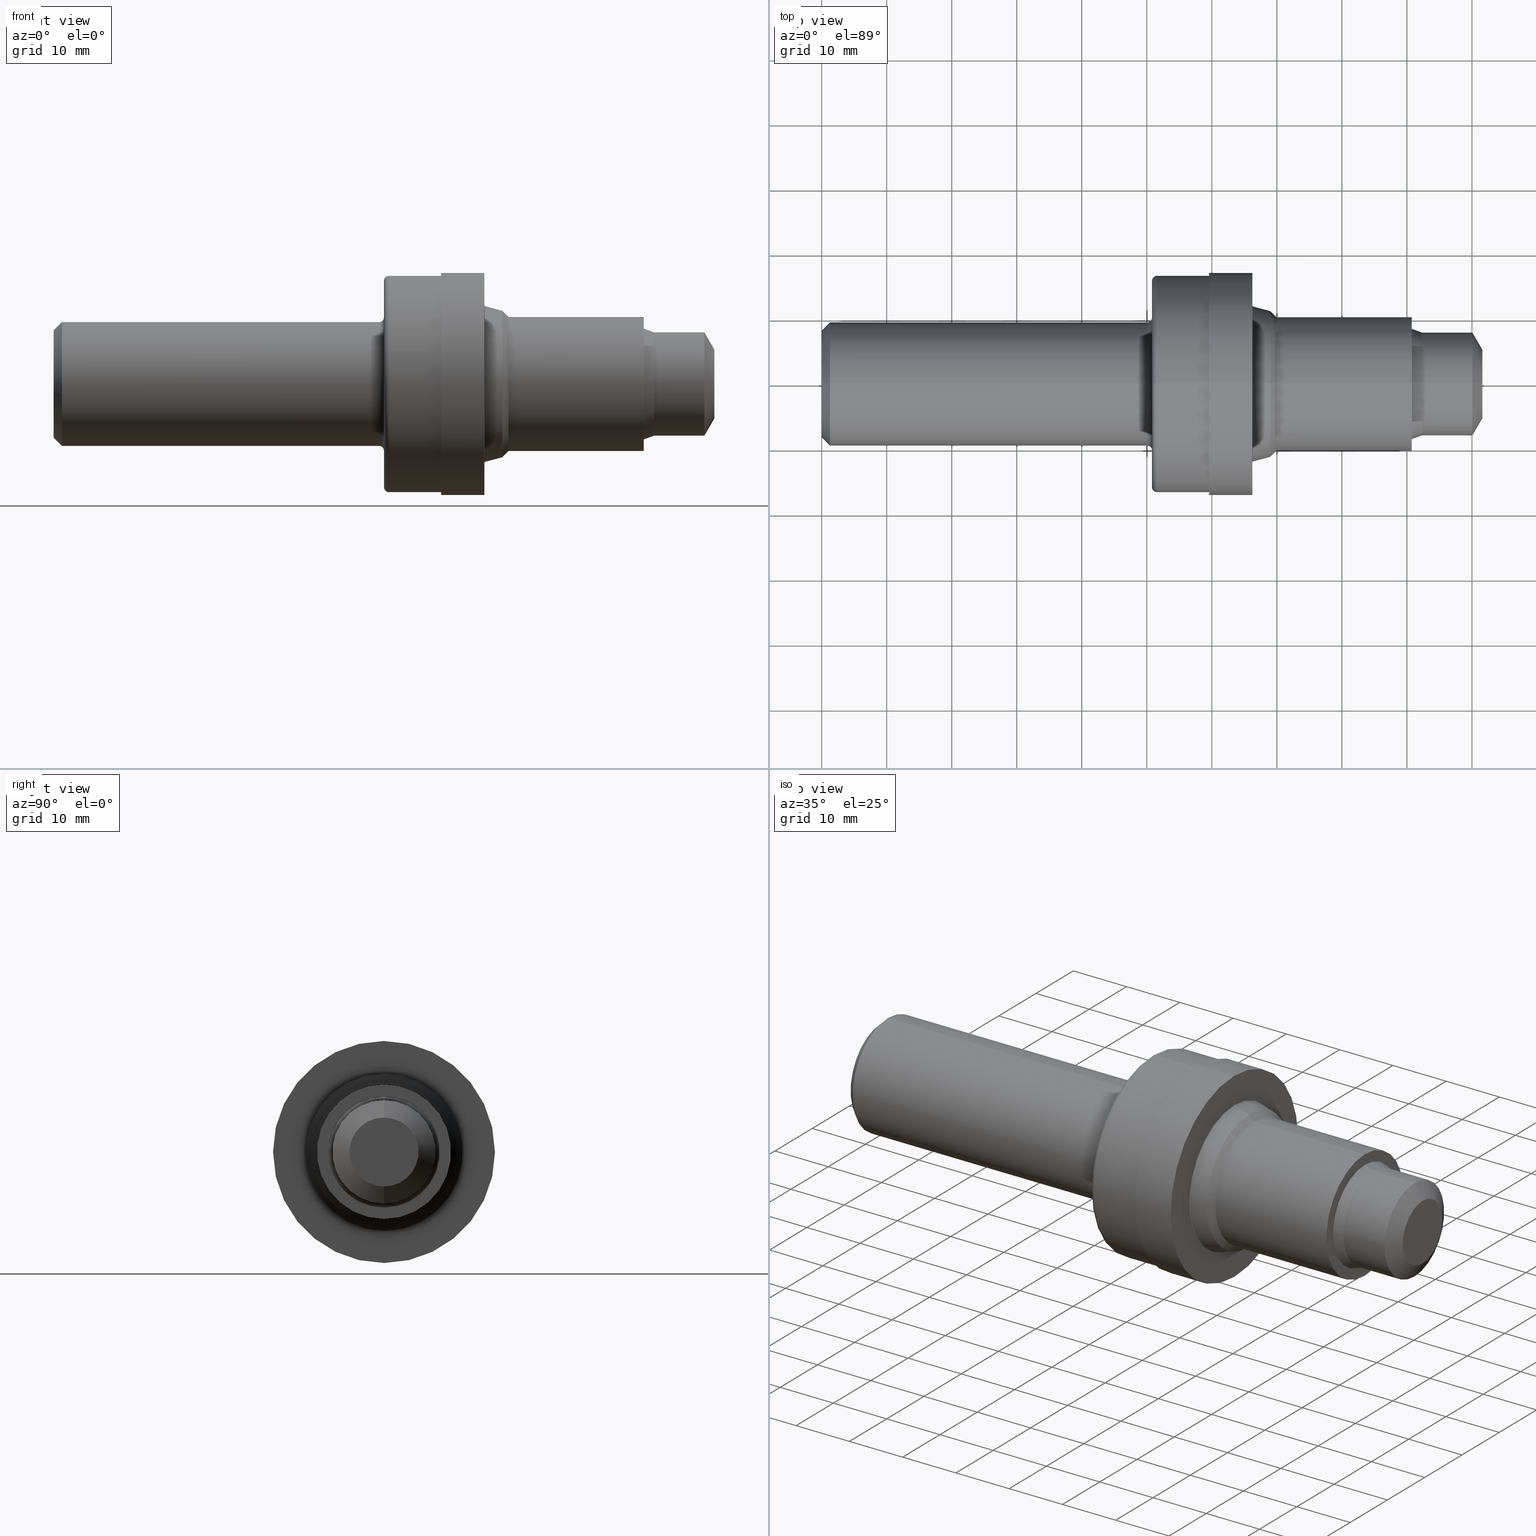
[diagram: canonical four-view strip — front | top / right | iso, engineering-drawing reading convention]
A machine part, canonical four-view strip (front | top / right | iso — engineering-drawing reading convention). The complete STEP part file that produces these views, byte-faithful:
ISO-10303-21;
HEADER;
FILE_DESCRIPTION (( 'STEP AP214' ),
    '1' );
FILE_NAME ('C10-2-FINISH-X8.STEP',
    '2019-02-18T20:35:58',
    ( '' ),
    ( '' ),
    'SwSTEP 2.0',
    'SolidWorks 2018',
    '' );
FILE_SCHEMA (( 'AUTOMOTIVE_DESIGN' ));
ENDSEC;

DATA;
#1 = EDGE_CURVE ( 'NONE', #797, #310, #361, .T. ) ;
#2 = ADVANCED_FACE ( 'NONE', ( #760 ), #148, .T. ) ;
#3 = TOROIDAL_SURFACE ( 'NONE', #757, 0.6250000000000000000, 0.02999999999999995379 ) ;
#4 = DIRECTION ( 'NONE',  ( 0.0000000000000000000, 0.0000000000000000000, 1.000000000000000000 ) ) ;
#5 = DIRECTION ( 'NONE',  ( 0.0000000000000000000, -1.224646799147350989E-16, 1.000000000000000000 ) ) ;
#6 = ORIENTED_EDGE ( 'NONE', *, *, #844, .F. ) ;
#7 = ORIENTED_EDGE ( 'NONE', *, *, #376, .T. ) ;
#8 = LINE ( 'NONE', #48, #212 ) ;
#9 = LINE ( 'NONE', #399, #372 ) ;
#10 = DIRECTION ( 'NONE',  ( 1.000000000000000000, 0.0000000000000000000, 0.0000000000000000000 ) ) ;
#11 = LINE ( 'NONE', #695, #697 ) ;
#12 = PRODUCT_DEFINITION ( 'UNKNOWN', '', #54, #629 ) ;
#13 = CIRCLE ( 'NONE', #781, 0.6250000000000000000 ) ;
#14 =( NAMED_UNIT ( * ) SI_UNIT ( $, .STERADIAN. ) SOLID_ANGLE_UNIT ( ) );
#15 = ORIENTED_EDGE ( 'NONE', *, *, #789, .F. ) ;
#16 = CARTESIAN_POINT ( 'NONE',  ( 4.000000000000000000, 0.0000000000000000000, 0.2089769515458670124 ) ) ;
#17 = ORIENTED_EDGE ( 'NONE', *, *, #771, .T. ) ;
#18 = SURFACE_SIDE_STYLE ('',( #187 ) ) ;
#19 = ORIENTED_EDGE ( 'NONE', *, *, #806, .F. ) ;
#20 = EDGE_CURVE ( 'NONE', #676, #194, #505, .T. ) ;
#21 = AXIS2_PLACEMENT_3D ( 'NONE', #808, #478, #539 ) ;
#22 = LINE ( 'NONE', #135, #709 ) ;
#23 = EDGE_CURVE ( 'NONE', #496, #572, #166, .T. ) ;
#24 = LINE ( 'NONE', #123, #497 ) ;
#25 = AXIS2_PLACEMENT_3D ( 'NONE', #718, #50, #592 ) ;
#26 = LINE ( 'NONE', #591, #857 ) ;
#27 = DIRECTION ( 'NONE',  ( -1.000000000000000000, -0.0000000000000000000, -0.0000000000000000000 ) ) ;
#28 = EDGE_LOOP ( 'NONE', ( #739, #575 ) ) ;
#29 = ORIENTED_EDGE ( 'NONE', *, *, #283, .T. ) ;
#30 = EDGE_CURVE ( 'NONE', #594, #429, #338, .T. ) ;
#31 = EDGE_LOOP ( 'NONE', ( #434, #29, #436, #556 ) ) ;
#32 = AXIS2_PLACEMENT_3D ( 'NONE', #782, #585, #104 ) ;
#33 = ORIENTED_EDGE ( 'NONE', *, *, #410, .T. ) ;
#34 = CARTESIAN_POINT ( 'NONE',  ( 2.029999999999999805, 0.0000000000000000000, 0.0000000000000000000 ) ) ;
#35 = DIRECTION ( 'NONE',  ( 0.0000000000000000000, 0.0000000000000000000, 1.000000000000000000 ) ) ;
#36 = DIRECTION ( 'NONE',  ( 1.000000000000000000, 0.0000000000000000000, 0.0000000000000000000 ) ) ;
#37 = DIRECTION ( 'NONE',  ( -1.000000000000000000, -0.0000000000000000000, -0.0000000000000000000 ) ) ;
#38 = EDGE_CURVE ( 'NONE', #490, #226, #869, .T. ) ;
#39 = UNCERTAINTY_MEASURE_WITH_UNIT (LENGTH_MEASURE( 1.000000000000000082E-05 ), #754, 'distance_accuracy_value', 'NONE');
#40 = CARTESIAN_POINT ( 'NONE',  ( 3.573000000000000398, 0.0000000000000000000, 0.3354661545245046783 ) ) ;
#41 = DIRECTION ( 'NONE',  ( 0.0000000000000000000, 0.0000000000000000000, 1.000000000000000000 ) ) ;
#42 = EDGE_LOOP ( 'NONE', ( #322, #155, #395, #256 ) ) ;
#43 = CARTESIAN_POINT ( 'NONE',  ( 4.000000000000000000, 0.0000000000000000000, 0.0000000000000000000 ) ) ;
#44 = CARTESIAN_POINT ( 'NONE',  ( 3.573000000000000398, 0.0000000000000000000, 0.0000000000000000000 ) ) ;
#45 = CYLINDRICAL_SURFACE ( 'NONE', #291, 0.6720000000000001528 ) ;
#46 = CIRCLE ( 'NONE', #214, 0.3354661545245046783 ) ;
#47 = CARTESIAN_POINT ( 'NONE',  ( 0.0000000000000000000, 4.284426826817016124E-17, 0.3248500000000001386 ) ) ;
#48 = CARTESIAN_POINT ( 'NONE',  ( 4.000000000000000000, 2.559229548062175556E-17, -0.2089769515458670124 ) ) ;
#49 = EDGE_CURVE ( 'NONE', #792, #676, #377, .T. ) ;
#50 = DIRECTION ( 'NONE',  ( -1.000000000000000000, 0.0000000000000000000, -0.0000000000000000000 ) ) ;
#51 = CARTESIAN_POINT ( 'NONE',  ( 3.572999999999999954, 0.0000000000000000000, 0.4060000000000000275 ) ) ;
#52 = VERTEX_POINT ( 'NONE', #16 ) ;
#53 = DIRECTION ( 'NONE',  ( -1.000000000000000000, -0.0000000000000000000, -0.0000000000000000000 ) ) ;
#54 = PRODUCT_DEFINITION_FORMATION_WITH_SPECIFIED_SOURCE ( 'ANY', '', #122, .NOT_KNOWN. ) ;
#55 = ORIENTED_EDGE ( 'NONE', *, *, #598, .F. ) ;
#56 = AXIS2_PLACEMENT_3D ( 'NONE', #319, #851, #182 ) ;
#57 = CARTESIAN_POINT ( 'NONE',  ( 2.346000000000000085, 8.021436534415163002E-17, -0.6550000000000000266 ) ) ;
#58 = EDGE_LOOP ( 'NONE', ( #558, #620, #217, #843 ) ) ;
#59 = FACE_OUTER_BOUND ( 'NONE', #157, .T. ) ;
#60 = CARTESIAN_POINT ( 'NONE',  ( 2.608000000000000096, 0.6720000000000001528, 0.0000000000000000000 ) ) ;
#61 = ADVANCED_FACE ( 'NONE', ( #532 ), #530, .T. ) ;
#62 = LENGTH_MEASURE_WITH_UNIT ( LENGTH_MEASURE( 0.02539999999999999897 ), #554 );
#63 = ORIENTED_EDGE ( 'NONE', *, *, #222, .F. ) ;
#64 = AXIS2_PLACEMENT_3D ( 'NONE', #347, #812, #4 ) ;
#65 = CARTESIAN_POINT ( 'NONE',  ( 2.715999999999999748, 0.0000000000000000000, 0.0000000000000000000 ) ) ;
#66 = ADVANCED_FACE ( 'NONE', ( #686 ), #685, .T. ) ;
#67 = ORIENTED_EDGE ( 'NONE', *, *, #500, .T. ) ;
#68 = PLANE ( 'NONE',  #151 ) ;
#69 = EDGE_CURVE ( 'NONE', #77, #194, #867, .T. ) ;
#70 = ORIENTED_EDGE ( 'NONE', *, *, #616, .T. ) ;
#71 = DIRECTION ( 'NONE',  ( 0.0000000000000000000, 0.0000000000000000000, 1.000000000000000000 ) ) ;
#72 = DIRECTION ( 'NONE',  ( 0.7071067811865483499, 0.0000000000000000000, -0.7071067811865465735 ) ) ;
#73 = AXIS2_PLACEMENT_3D ( 'NONE', #44, #458, #850 ) ;
#74 = CARTESIAN_POINT ( 'NONE',  ( 2.346000000000000085, 0.0000000000000000000, 0.0000000000000000000 ) ) ;
#75 = FACE_OUTER_BOUND ( 'NONE', #518, .T. ) ;
#76 = ORIENTED_EDGE ( 'NONE', *, *, #728, .F. ) ;
#77 = VERTEX_POINT ( 'NONE', #738 ) ;
#78 = AXIS2_PLACEMENT_3D ( 'NONE', #304, #700, #41 ) ;
#79 = VERTEX_POINT ( 'NONE', #137 ) ;
#80 = FACE_OUTER_BOUND ( 'NONE', #582, .T. ) ;
#81 = DIRECTION ( 'NONE',  ( 0.0000000000000000000, 0.0000000000000000000, -1.000000000000000000 ) ) ;
#82 = ORIENTED_EDGE ( 'NONE', *, *, #283, .F. ) ;
#83 = EDGE_CURVE ( 'NONE', #852, #289, #13, .T. ) ;
#84 = DIRECTION ( 'NONE',  ( 0.0000000000000000000, 0.0000000000000000000, -1.000000000000000000 ) ) ;
#85 = VERTEX_POINT ( 'NONE', #349 ) ;
#86 = EDGE_CURVE ( 'NONE', #874, #296, #165, .T. ) ;
#87 = DIRECTION ( 'NONE',  ( 0.0000000000000000000, 0.0000000000000000000, 1.000000000000000000 ) ) ;
#88 = CIRCLE ( 'NONE', #292, 0.6250000000000000000 ) ;
#89 = FILL_AREA_STYLE_COLOUR ( '', #501 ) ;
#90 = ORIENTED_EDGE ( 'NONE', *, *, #652, .T. ) ;
#91 = DIRECTION ( 'NONE',  ( 0.0000000000000000000, 0.0000000000000000000, 1.000000000000000000 ) ) ;
#92 = ORIENTED_EDGE ( 'NONE', *, *, #167, .T. ) ;
#93 = EDGE_CURVE ( 'NONE', #725, #52, #699, .T. ) ;
#94 = DIRECTION ( 'NONE',  ( 0.0000000000000000000, 0.0000000000000000000, 1.000000000000000000 ) ) ;
#95 = PRODUCT_RELATED_PRODUCT_CATEGORY ( 'part', '', ( #122 ) ) ;
#96 = AXIS2_PLACEMENT_3D ( 'NONE', #332, #405, #726 ) ;
#97 = CIRCLE ( 'NONE', #411, 0.4435614872174389878 ) ;
#98 = ORIENTED_EDGE ( 'NONE', *, *, #210, .T. ) ;
#99 = ORIENTED_EDGE ( 'NONE', *, *, #705, .T. ) ;
#100 = DIRECTION ( 'NONE',  ( 0.0000000000000000000, 0.0000000000000000000, 1.000000000000000000 ) ) ;
#101 = VERTEX_POINT ( 'NONE', #425 ) ;
#102 = CARTESIAN_POINT ( 'NONE',  ( 3.939999999999999947, 0.0000000000000000000, 0.0000000000000000000 ) ) ;
#103 = SURFACE_STYLE_FILL_AREA ( #640 ) ;
#104 = DIRECTION ( 'NONE',  ( 0.0000000000000000000, 0.0000000000000000000, -1.000000000000000000 ) ) ;
#105 = DIRECTION ( 'NONE',  ( -1.000000000000000000, -0.0000000000000000000, -0.0000000000000000000 ) ) ;
#106 = AXIS2_PLACEMENT_3D ( 'NONE', #614, #119, #526 ) ;
#107 = DIRECTION ( 'NONE',  ( -1.000000000000000000, -0.0000000000000000000, -0.0000000000000000000 ) ) ;
#108 = DIRECTION ( 'NONE',  ( -1.000000000000000000, -0.0000000000000000000, -0.0000000000000000000 ) ) ;
#109 = CARTESIAN_POINT ( 'NONE',  ( 1.969999999999999973, 0.0000000000000000000, 0.0000000000000000000 ) ) ;
#110 = DIRECTION ( 'NONE',  ( 0.0000000000000000000, 0.0000000000000000000, 1.000000000000000000 ) ) ;
#111 = EDGE_CURVE ( 'NONE', #77, #549, #336, .T. ) ;
#112 = FACE_BOUND ( 'NONE', #384, .T. ) ;
#113 = DIRECTION ( 'NONE',  ( 0.7071067811865483499, 8.659560562354922997E-17, 0.7071067811865465735 ) ) ;
#114 = AXIS2_PLACEMENT_3D ( 'NONE', #595, #118, #525 ) ;
#115 = CARTESIAN_POINT ( 'NONE',  ( 0.0000000000000000000, 0.0000000000000000000, 0.0000000000000000000 ) ) ;
#116 = ORIENTED_EDGE ( 'NONE', *, *, #328, .F. ) ;
#117 = CARTESIAN_POINT ( 'NONE',  ( 2.715999999999999748, 0.0000000000000000000, 0.0000000000000000000 ) ) ;
#118 = DIRECTION ( 'NONE',  ( -1.000000000000000000, -0.0000000000000000000, -0.0000000000000000000 ) ) ;
#119 = DIRECTION ( 'NONE',  ( -1.000000000000000000, -0.0000000000000000000, -0.0000000000000000000 ) ) ;
#120 = FACE_OUTER_BOUND ( 'NONE', #28, .T. ) ;
#121 = CYLINDRICAL_SURFACE ( 'NONE', #667, 0.6550000000000000266 ) ;
#122 = PRODUCT ( 'C10-2-FINISH-X8', 'C10-2-FINISH-X8', '', ( #481 ) ) ;
#123 = CARTESIAN_POINT ( 'NONE',  ( 0.0000000000000000000, 8.021436534415163002E-17, -0.6550000000000000266 ) ) ;
#124 = ORIENTED_EDGE ( 'NONE', *, *, #86, .F. ) ;
#125 = CARTESIAN_POINT ( 'NONE',  ( 2.029999999999999805, 8.021436534415163002E-17, -0.6550000000000000266 ) ) ;
#126 = LENGTH_MEASURE_WITH_UNIT ( LENGTH_MEASURE( 0.02539999999999999897 ), #297 );
#127 = EDGE_CURVE ( 'NONE', #730, #433, #191, .T. ) ;
#128 = CARTESIAN_POINT ( 'NONE',  ( 2.615499999999999492, 0.0000000000000000000, 0.4782549524098421156 ) ) ;
#129 = ADVANCED_FACE ( 'NONE', ( #146 ), #698, .F. ) ;
#130 = VECTOR ( 'NONE', #232, 39.37007874015748854 ) ;
#131 = PLANE ( 'NONE',  #158 ) ;
#132 = DIRECTION ( 'NONE',  ( -1.000000000000000000, -0.0000000000000000000, -0.0000000000000000000 ) ) ;
#133 = ORIENTED_EDGE ( 'NONE', *, *, #579, .F. ) ;
#134 = ADVANCED_FACE ( 'NONE', ( #840 ), #639, .T. ) ;
#135 = CARTESIAN_POINT ( 'NONE',  ( 2.753561487217438764, 4.972066004538254721E-17, -0.4060000000000000275 ) ) ;
#136 = EDGE_CURVE ( 'NONE', #638, #535, #487, .T. ) ;
#137 = CARTESIAN_POINT ( 'NONE',  ( 3.572999999999999954, 4.972066004538254721E-17, -0.4060000000000000275 ) ) ;
#138 = DIRECTION ( 'NONE',  ( 0.0000000000000000000, 0.0000000000000000000, -1.000000000000000000 ) ) ;
#139 = VECTOR ( 'NONE', #740, 39.37007874015748143 ) ;
#140 = EDGE_LOOP ( 'NONE', ( #414, #437, #431, #76 ) ) ;
#141 = CARTESIAN_POINT ( 'NONE',  ( 1.969999999999999973, 0.0000000000000000000, 0.4048500000000005428 ) ) ;
#142 = CIRCLE ( 'NONE', #837, 0.3748500000000005161 ) ;
#143 = CYLINDRICAL_SURFACE ( 'NONE', #452, 0.3129000000000000115 ) ;
#144 = CARTESIAN_POINT ( 'NONE',  ( 2.715999999999999748, 0.0000000000000000000, 0.4435614872174389878 ) ) ;
#145 = FILL_AREA_STYLE ('',( #89 ) ) ;
#146 = FACE_OUTER_BOUND ( 'NONE', #584, .T. ) ;
#147 = CARTESIAN_POINT ( 'NONE',  ( 2.613558857161730753, 0.0000000000000000000, 0.0000000000000000000 ) ) ;
#148 = CONICAL_SURFACE ( 'NONE', #225, 0.3748500000000000165, 0.7853981633974470578 ) ;
#149 = EDGE_CURVE ( 'NONE', #209, #173, #503, .T. ) ;
#150 = ORIENTED_EDGE ( 'NONE', *, *, #154, .T. ) ;
#151 = AXIS2_PLACEMENT_3D ( 'NONE', #809, #734, #138 ) ;
#152 = CIRCLE ( 'NONE', #707, 0.007499999999999919925 ) ;
#153 = ORIENTED_EDGE ( 'NONE', *, *, #30, .T. ) ;
#154 = EDGE_CURVE ( 'NONE', #52, #797, #824, .T. ) ;
#155 = ORIENTED_EDGE ( 'NONE', *, *, #849, .T. ) ;
#156 = DIRECTION ( 'NONE',  ( 1.000000000000000000, 0.0000000000000000000, 0.0000000000000000000 ) ) ;
#157 = EDGE_LOOP ( 'NONE', ( #344, #642, #442, #7 ) ) ;
#158 = AXIS2_PLACEMENT_3D ( 'NONE', #60, #343, #415 ) ;
#159 = CIRCLE ( 'NONE', #656, 0.4048500000000005428 ) ;
#160 = CARTESIAN_POINT ( 'NONE',  ( 4.000000000000000000, 0.0000000000000000000, 0.0000000000000000000 ) ) ;
#161 = FACE_OUTER_BOUND ( 'NONE', #380, .T. ) ;
#162 = CARTESIAN_POINT ( 'NONE',  ( 3.634999999999999787, 0.0000000000000000000, 0.3129000000000000115 ) ) ;
#163 = CIRCLE ( 'NONE', #680, 0.4782549524098422267 ) ;
#164 = DIRECTION ( 'NONE',  ( -1.000000000000000000, -0.0000000000000000000, -0.0000000000000000000 ) ) ;
#165 = CIRCLE ( 'NONE', #590, 0.6720000000000001528 ) ;
#166 = CIRCLE ( 'NONE', #644, 0.03000000000000002318 ) ;
#167 = EDGE_CURVE ( 'NONE', #310, #797, #661, .T. ) ;
#168 = DIRECTION ( 'NONE',  ( -1.000000000000000000, -0.0000000000000000000, -0.0000000000000000000 ) ) ;
#169 = AXIS2_PLACEMENT_3D ( 'NONE', #602, #265, #467 ) ;
#170 = ORIENTED_EDGE ( 'NONE', *, *, #30, .F. ) ;
#171 = DIRECTION ( 'NONE',  ( 0.0000000000000000000, 0.0000000000000000000, 1.000000000000000000 ) ) ;
#172 = MANIFOLD_SOLID_BREP ( 'B030BB51-630B-48ae-9469-E681DCEEE6B3-GAAFaceID17', #669 ) ;
#173 = VERTEX_POINT ( 'NONE', #506 ) ;
#174 = CARTESIAN_POINT ( 'NONE',  ( 2.000000000000000000, 7.837739514543061660E-17, -0.6250000000000000000 ) ) ;
#175 = CARTESIAN_POINT ( 'NONE',  ( 2.753561487217438764, 0.0000000000000000000, 0.0000000000000000000 ) ) ;
#176 = DIRECTION ( 'NONE',  ( 0.0000000000000000000, 0.0000000000000000000, 1.000000000000000000 ) ) ;
#177 = DIRECTION ( 'NONE',  ( 0.0000000000000000000, 0.0000000000000000000, 1.000000000000000000 ) ) ;
#178 = FACE_OUTER_BOUND ( 'NONE', #282, .T. ) ;
#179 = AXIS2_PLACEMENT_3D ( 'NONE', #486, #285, #823 ) ;
#180 = CARTESIAN_POINT ( 'NONE',  ( 1.969999999999999973, 0.0000000000000000000, 0.3748500000000005161 ) ) ;
#181 = ORIENTED_EDGE ( 'NONE', *, *, #728, .T. ) ;
#182 = DIRECTION ( 'NONE',  ( 0.0000000000000000000, 0.0000000000000000000, 1.000000000000000000 ) ) ;
#183 = CONICAL_SURFACE ( 'NONE', #524, 0.2089769515458670124, 1.047197551196600074 ) ;
#184 = CIRCLE ( 'NONE', #73, 0.3354661545245046783 ) ;
#185 = DIRECTION ( 'NONE',  ( -1.000000000000000000, -0.0000000000000000000, -0.0000000000000000000 ) ) ;
#186 = EDGE_CURVE ( 'NONE', #173, #209, #600, .T. ) ;
#187 = SURFACE_STYLE_FILL_AREA ( #145 ) ;
#188 = DIRECTION ( 'NONE',  ( 0.0000000000000000000, 0.0000000000000000000, 1.000000000000000000 ) ) ;
#189 = DIMENSIONAL_EXPONENTS ( 1.000000000000000000, 0.0000000000000000000, 0.0000000000000000000, 0.0000000000000000000, 0.0000000000000000000, 0.0000000000000000000, 0.0000000000000000000 ) ;
#190 = AXIS2_PLACEMENT_3D ( 'NONE', #731, #870, #474 ) ;
#191 = CIRCLE ( 'NONE', #674, 0.6550000000000000266 ) ;
#192 = ORIENTED_EDGE ( 'NONE', *, *, #624, .F. ) ;
#193 = DIRECTION ( 'NONE',  ( -1.000000000000000000, -0.0000000000000000000, -0.0000000000000000000 ) ) ;
#194 = VERTEX_POINT ( 'NONE', #774 ) ;
#195 = DIRECTION ( 'NONE',  ( -1.000000000000000000, -0.0000000000000000000, -0.0000000000000000000 ) ) ;
#196 = ADVANCED_FACE ( 'NONE', ( #432 ), #769, .T. ) ;
#197 = ORIENTED_EDGE ( 'NONE', *, *, #268, .T. ) ;
#198 = CARTESIAN_POINT ( 'NONE',  ( 1.969999999999999973, 4.957982566348065676E-17, -0.4048500000000005428 ) ) ;
#199 = VERTEX_POINT ( 'NONE', #391 ) ;
#200 = EDGE_CURVE ( 'NONE', #429, #730, #752, .T. ) ;
#201 = DIRECTION ( 'NONE',  ( -0.0000000000000000000, 1.000000000000000000, 1.224646799147353207E-16 ) ) ;
#202 = ADVANCED_FACE ( 'NONE', ( #80 ), #45, .T. ) ;
#203 = CIRCLE ( 'NONE', #845, 0.02999999999999995379 ) ;
#204 = AXIS2_PLACEMENT_3D ( 'NONE', #301, #515, #577 ) ;
#205 = CARTESIAN_POINT ( 'NONE',  ( 3.634999999999999787, 0.0000000000000000000, 0.3129000000000000115 ) ) ;
#206 = ADVANCED_FACE ( 'NONE', ( #59 ), #422, .F. ) ;
#207 = DIRECTION ( 'NONE',  ( -0.9659258262890689783, 0.0000000000000000000, 0.2588190451025185745 ) ) ;
#208 = CARTESIAN_POINT ( 'NONE',  ( 0.05000000000000000278, 0.0000000000000000000, 0.0000000000000000000 ) ) ;
#209 = VERTEX_POINT ( 'NONE', #588 ) ;
#210 = EDGE_CURVE ( 'NONE', #250, #702, #235, .T. ) ;
#211 = DIRECTION ( 'NONE',  ( -0.0000000000000000000, 1.000000000000000000, 1.224646799147353207E-16 ) ) ;
#212 = VECTOR ( 'NONE', #523, 39.37007874015748854 ) ;
#213 = FACE_OUTER_BOUND ( 'NONE', #783, .T. ) ;
#214 = AXIS2_PLACEMENT_3D ( 'NONE', #858, #401, #791 ) ;
#215 = DIRECTION ( 'NONE',  ( -1.000000000000000000, -0.0000000000000000000, -0.0000000000000000000 ) ) ;
#216 = DIRECTION ( 'NONE',  ( 1.000000000000000000, 0.0000000000000000000, 0.0000000000000000000 ) ) ;
#217 = ORIENTED_EDGE ( 'NONE', *, *, #186, .F. ) ;
#218 = ORIENTED_EDGE ( 'NONE', *, *, #167, .F. ) ;
#219 = VERTEX_POINT ( 'NONE', #316 ) ;
#220 = DIRECTION ( 'NONE',  ( -1.000000000000000000, -0.0000000000000000000, -0.0000000000000000000 ) ) ;
#221 = ORIENTED_EDGE ( 'NONE', *, *, #756, .T. ) ;
#222 = EDGE_CURVE ( 'NONE', #101, #638, #227, .T. ) ;
#223 = AXIS2_PLACEMENT_3D ( 'NONE', #862, #264, #722 ) ;
#224 = ORIENTED_EDGE ( 'NONE', *, *, #705, .F. ) ;
#225 = AXIS2_PLACEMENT_3D ( 'NONE', #358, #10, #84 ) ;
#226 = VERTEX_POINT ( 'NONE', #516 ) ;
#227 = CIRCLE ( 'NONE', #483, 0.3129000000000000115 ) ;
#228 = FACE_BOUND ( 'NONE', #795, .T. ) ;
#229 =( GEOMETRIC_REPRESENTATION_CONTEXT ( 3 ) GLOBAL_UNCERTAINTY_ASSIGNED_CONTEXT ( ( #293 ) ) GLOBAL_UNIT_ASSIGNED_CONTEXT ( ( #385, #775, #238 ) ) REPRESENTATION_CONTEXT ( 'NONE', 'WORKASPACE' ) );
#230 = ORIENTED_EDGE ( 'NONE', *, *, #376, .F. ) ;
#231 = ORIENTED_EDGE ( 'NONE', *, *, #210, .F. ) ;
#232 = DIRECTION ( 'NONE',  ( -0.9396926207859068736, 0.0000000000000000000, 0.3420201433256725987 ) ) ;
#233 = AXIS2_PLACEMENT_3D ( 'NONE', #463, #645, #324 ) ;
#234 = ORIENTED_EDGE ( 'NONE', *, *, #624, .T. ) ;
#235 = LINE ( 'NONE', #248, #397 ) ;
#236 = APPLICATION_PROTOCOL_DEFINITION ( 'draft international standard', 'automotive_design', 1998, #633 ) ;
#237 = ORIENTED_EDGE ( 'NONE', *, *, #86, .T. ) ;
#238 =( NAMED_UNIT ( * ) SI_UNIT ( $, .STERADIAN. ) SOLID_ANGLE_UNIT ( ) );
#239 = SURFACE_SIDE_STYLE ('',( #103 ) ) ;
#240 = AXIS2_PLACEMENT_3D ( 'NONE', #383, #374, #94 ) ;
#241 = EDGE_LOOP ( 'NONE', ( #871, #604, #368, #816 ) ) ;
#242 = CARTESIAN_POINT ( 'NONE',  ( 3.939999999999999947, 0.0000000000000000000, 0.3129000000000000115 ) ) ;
#243 = DIRECTION ( 'NONE',  ( 0.0000000000000000000, 0.0000000000000000000, 1.000000000000000000 ) ) ;
#244 = DIRECTION ( 'NONE',  ( -1.000000000000000000, -0.0000000000000000000, -0.0000000000000000000 ) ) ;
#245 = DIRECTION ( 'NONE',  ( -1.000000000000000000, -0.0000000000000000000, -0.0000000000000000000 ) ) ;
#246 = AXIS2_PLACEMENT_3D ( 'NONE', #315, #767, #504 ) ;
#247 = EDGE_LOOP ( 'NONE', ( #768, #428, #536, #17 ) ) ;
#248 = CARTESIAN_POINT ( 'NONE',  ( 0.0000000000000000000, 4.590588526603856213E-17, -0.3748500000000002386 ) ) ;
#249 = DIRECTION ( 'NONE',  ( 0.0000000000000000000, -1.000000000000000000, 0.0000000000000000000 ) ) ;
#250 = VERTEX_POINT ( 'NONE', #784 ) ;
#251 = DIRECTION ( 'NONE',  ( -1.000000000000000000, -0.0000000000000000000, -0.0000000000000000000 ) ) ;
#252 = DIRECTION ( 'NONE',  ( -1.000000000000000000, -0.0000000000000000000, -0.0000000000000000000 ) ) ;
#253 = LINE ( 'NONE', #586, #375 ) ;
#254 = AXIS2_PLACEMENT_3D ( 'NONE', #175, #643, #243 ) ;
#255 = EDGE_LOOP ( 'NONE', ( #116, #153, #855, #55 ) ) ;
#256 = ORIENTED_EDGE ( 'NONE', *, *, #69, .F. ) ;
#257 = CARTESIAN_POINT ( 'NONE',  ( 2.000000000000000000, 0.0000000000000000000, 0.0000000000000000000 ) ) ;
#258 = ORIENTED_EDGE ( 'NONE', *, *, #636, .T. ) ;
#259 = CARTESIAN_POINT ( 'NONE',  ( 2.000000000000000000, 0.0000000000000000000, 0.4048500000000005428 ) ) ;
#260 = CARTESIAN_POINT ( 'NONE',  ( 0.05000000000000000278, 0.0000000000000000000, -0.3748500000000000165 ) ) ;
#261 = ORIENTED_EDGE ( 'NONE', *, *, #295, .T. ) ;
#262 = AXIS2_PLACEMENT_3D ( 'NONE', #568, #392, #381 ) ;
#263 = CONICAL_SURFACE ( 'NONE', #538, 0.4060000000000000275, 0.7853981633974473908 ) ;
#264 = DIRECTION ( 'NONE',  ( -1.000000000000000000, -0.0000000000000000000, -0.0000000000000000000 ) ) ;
#265 = DIRECTION ( 'NONE',  ( -1.000000000000000000, -0.0000000000000000000, -0.0000000000000000000 ) ) ;
#266 = ORIENTED_EDGE ( 'NONE', *, *, #537, .F. ) ;
#267 = ADVANCED_FACE ( 'NONE', ( #741 ), #183, .T. ) ;
#268 = EDGE_CURVE ( 'NONE', #276, #831, #564, .T. ) ;
#269 = PRESENTATION_STYLE_ASSIGNMENT (( #750 ) ) ;
#270 = DIRECTION ( 'NONE',  ( -1.000000000000000000, -0.0000000000000000000, -0.0000000000000000000 ) ) ;
#271 = ORIENTED_EDGE ( 'NONE', *, *, #410, .F. ) ;
#272 = CARTESIAN_POINT ( 'NONE',  ( 0.05000000000000000278, 4.590588526603855597E-17, -0.3748500000000000165 ) ) ;
#273 = DIRECTION ( 'NONE',  ( -1.000000000000000000, -0.0000000000000000000, -0.0000000000000000000 ) ) ;
#274 = ADVANCED_FACE ( 'NONE', ( #370 ), #715, .F. ) ;
#275 = CARTESIAN_POINT ( 'NONE',  ( 2.029999999999999805, 7.654042494670957853E-17, -0.6250000000000000000 ) ) ;
#276 = VERTEX_POINT ( 'NONE', #47 ) ;
#277 = DIRECTION ( 'NONE',  ( 0.0000000000000000000, 0.0000000000000000000, 1.000000000000000000 ) ) ;
#278 = ADVANCED_FACE ( 'NONE', ( #521 ), #353, .T. ) ;
#279 =( GEOMETRIC_REPRESENTATION_CONTEXT ( 3 ) GLOBAL_UNCERTAINTY_ASSIGNED_CONTEXT ( ( #759 ) ) GLOBAL_UNIT_ASSIGNED_CONTEXT ( ( #777, #386, #842 ) ) REPRESENTATION_CONTEXT ( 'NONE', 'WORKASPACE' ) );
#280 = CARTESIAN_POINT ( 'NONE',  ( 0.0000000000000000000, 0.0000000000000000000, 0.4060000000000000275 ) ) ;
#281 = CIRCLE ( 'NONE', #246, 0.3748500000000000165 ) ;
#282 = EDGE_LOOP ( 'NONE', ( #635, #90, #15, #517 ) ) ;
#283 = EDGE_CURVE ( 'NONE', #725, #310, #8, .T. ) ;
#284 = ORIENTED_EDGE ( 'NONE', *, *, #222, .T. ) ;
#285 = DIRECTION ( 'NONE',  ( -1.000000000000000000, -0.0000000000000000000, -0.0000000000000000000 ) ) ;
#286 = CONICAL_SURFACE ( 'NONE', #393, 0.3129000000000000115, 0.3490658503988700589 ) ;
#287 = ORIENTED_EDGE ( 'NONE', *, *, #83, .T. ) ;
#288 = DIRECTION ( 'NONE',  ( -1.000000000000000000, -0.0000000000000000000, -0.0000000000000000000 ) ) ;
#289 = VERTEX_POINT ( 'NONE', #323 ) ;
#290 = COLOUR_RGB ( '',0.7529411764705882248, 0.7529411764705882248, 0.7529411764705882248 ) ;
#291 = AXIS2_PLACEMENT_3D ( 'NONE', #512, #37, #35 ) ;
#292 = AXIS2_PLACEMENT_3D ( 'NONE', #574, #168, #177 ) ;
#293 = UNCERTAINTY_MEASURE_WITH_UNIT (LENGTH_MEASURE( 1.000000000000000082E-05 ), #385, 'distance_accuracy_value', 'NONE');
#294 = CIRCLE ( 'NONE', #106, 0.4710105087126742474 ) ;
#295 = EDGE_CURVE ( 'NONE', #85, #572, #159, .T. ) ;
#296 = VERTEX_POINT ( 'NONE', #461 ) ;
#297 =( LENGTH_UNIT ( ) NAMED_UNIT ( * ) SI_UNIT ( $, .METRE. ) );
#298 = ORIENTED_EDGE ( 'NONE', *, *, #488, .F. ) ;
#299 = CONICAL_SURFACE ( 'NONE', #746, 0.4435614872174389878, 0.2617993877991471874 ) ;
#300 = FACE_OUTER_BOUND ( 'NONE', #402, .T. ) ;
#301 = CARTESIAN_POINT ( 'NONE',  ( 3.634999999999999787, 0.0000000000000000000, 0.0000000000000000000 ) ) ;
#302 = EDGE_LOOP ( 'NONE', ( #404, #284, #378, #560 ) ) ;
#303 = CARTESIAN_POINT ( 'NONE',  ( 2.029999999999999805, 0.0000000000000000000, 0.0000000000000000000 ) ) ;
#304 = CARTESIAN_POINT ( 'NONE',  ( 0.0000000000000000000, 0.0000000000000000000, 0.0000000000000000000 ) ) ;
#305 = FILL_AREA_STYLE_COLOUR ( '', #290 ) ;
#306 = EDGE_CURVE ( 'NONE', #776, #79, #692, .T. ) ;
#307 = PRESENTATION_STYLE_ASSIGNMENT (( #704 ) ) ;
#308 = CARTESIAN_POINT ( 'NONE',  ( 2.607999999999999652, 5.856933966450829514E-17, -0.4782549524098421156 ) ) ;
#309 =( LENGTH_UNIT ( ) NAMED_UNIT ( * ) SI_UNIT ( $, .METRE. ) );
#310 = VERTEX_POINT ( 'NONE', #788 ) ;
#311 = CARTESIAN_POINT ( 'NONE',  ( 2.346000000000000085, 0.0000000000000000000, 0.0000000000000000000 ) ) ;
#312 = PRESENTATION_LAYER_ASSIGNMENT (  '', '', ( #758 ) ) ;
#313 = DIRECTION ( 'NONE',  ( 0.0000000000000000000, 0.0000000000000000000, 1.000000000000000000 ) ) ;
#314 = DIRECTION ( 'NONE',  ( 0.0000000000000000000, 0.0000000000000000000, 1.000000000000000000 ) ) ;
#315 = CARTESIAN_POINT ( 'NONE',  ( 0.05000000000000000278, 0.0000000000000000000, 0.0000000000000000000 ) ) ;
#316 = CARTESIAN_POINT ( 'NONE',  ( 2.607999999999999652, 0.0000000000000000000, 0.4782549524098421156 ) ) ;
#317 = AXIS2_PLACEMENT_3D ( 'NONE', #745, #356, #817 ) ;
#318 = VECTOR ( 'NONE', #863, 39.37007874015748143 ) ;
#319 = CARTESIAN_POINT ( 'NONE',  ( 2.615499999999999492, 0.0000000000000000000, 0.0000000000000000000 ) ) ;
#320 = ORIENTED_EDGE ( 'NONE', *, *, #38, .F. ) ;
#321 = CARTESIAN_POINT ( 'NONE',  ( 2.608000000000000096, 0.0000000000000000000, 0.6720000000000001528 ) ) ;
#322 = ORIENTED_EDGE ( 'NONE', *, *, #111, .T. ) ;
#323 = CARTESIAN_POINT ( 'NONE',  ( 2.000000000000000000, 0.0000000000000000000, 0.6250000000000000000 ) ) ;
#324 = DIRECTION ( 'NONE',  ( 0.0000000000000000000, 0.0000000000000000000, 1.000000000000000000 ) ) ;
#325 = FACE_BOUND ( 'NONE', #412, .T. ) ;
#326 = FACE_BOUND ( 'NONE', #723, .T. ) ;
#327 = DIRECTION ( 'NONE',  ( 0.0000000000000000000, 0.0000000000000000000, 1.000000000000000000 ) ) ;
#328 = EDGE_CURVE ( 'NONE', #594, #433, #24, .T. ) ;
#329 = DIRECTION ( 'NONE',  ( 0.0000000000000000000, 0.0000000000000000000, 1.000000000000000000 ) ) ;
#330 = CARTESIAN_POINT ( 'NONE',  ( 0.0000000000000000000, 8.229626490270213818E-17, -0.6720000000000001528 ) ) ;
#331 = CYLINDRICAL_SURFACE ( 'NONE', #417, 0.3748500000000002386 ) ;
#332 = CARTESIAN_POINT ( 'NONE',  ( 0.0000000000000000000, 0.0000000000000000000, 0.0000000000000000000 ) ) ;
#333 = DIMENSIONAL_EXPONENTS ( 1.000000000000000000, 0.0000000000000000000, 0.0000000000000000000, 0.0000000000000000000, 0.0000000000000000000, 0.0000000000000000000, 0.0000000000000000000 ) ;
#334 = CARTESIAN_POINT ( 'NONE',  ( 2.608000000000000096, 0.0000000000000000000, 0.0000000000000000000 ) ) ;
#335 = DIRECTION ( 'NONE',  ( -1.000000000000000000, -0.0000000000000000000, -0.0000000000000000000 ) ) ;
#336 = CIRCLE ( 'NONE', #626, 0.4435614872174389878 ) ;
#337 = CARTESIAN_POINT ( 'NONE',  ( 2.000000000000000000, 0.0000000000000000000, 0.0000000000000000000 ) ) ;
#338 = CIRCLE ( 'NONE', #689, 0.6550000000000000266 ) ;
#339 = CARTESIAN_POINT ( 'NONE',  ( 2.029999999999999805, 0.0000000000000000000, 0.0000000000000000000 ) ) ;
#340 = ADVANCED_FACE ( 'NONE', ( #679 ), #299, .T. ) ;
#341 = ORIENTED_EDGE ( 'NONE', *, *, #493, .T. ) ;
#342 = AXIS2_PLACEMENT_3D ( 'NONE', #628, #156, #565 ) ;
#343 = DIRECTION ( 'NONE',  ( -1.000000000000000000, 0.0000000000000000000, -0.0000000000000000000 ) ) ;
#344 = ORIENTED_EDGE ( 'NONE', *, *, #567, .F. ) ;
#345 = ADVANCED_FACE ( 'NONE', ( #655 ), #856, .T. ) ;
#346 = AXIS2_PLACEMENT_3D ( 'NONE', #208, #36, #448 ) ;
#347 = CARTESIAN_POINT ( 'NONE',  ( 2.615499999999999492, 0.0000000000000000000, 0.0000000000000000000 ) ) ;
#348 = CONICAL_SURFACE ( 'NONE', #21, 0.3129000000000000115, 0.3490658503988700589 ) ;
#349 = CARTESIAN_POINT ( 'NONE',  ( 2.000000000000000000, 4.957982566348065676E-17, -0.4048500000000005428 ) ) ;
#350 = EDGE_LOOP ( 'NONE', ( #701, #449, #446, #382 ) ) ;
#351 = DIRECTION ( 'NONE',  ( -1.000000000000000000, -0.0000000000000000000, -0.0000000000000000000 ) ) ;
#352 = ORIENTED_EDGE ( 'NONE', *, *, #555, .F. ) ;
#353 = CYLINDRICAL_SURFACE ( 'NONE', #696, 0.4060000000000000275 ) ;
#354 = AXIS2_PLACEMENT_3D ( 'NONE', #102, #578, #171 ) ;
#355 = CIRCLE ( 'NONE', #853, 0.02999999999999995379 ) ;
#356 = DIRECTION ( 'NONE',  ( -1.000000000000000000, -0.0000000000000000000, -0.0000000000000000000 ) ) ;
#357 = FACE_OUTER_BOUND ( 'NONE', #468, .T. ) ;
#358 = CARTESIAN_POINT ( 'NONE',  ( 0.05000000000000000278, 0.0000000000000000000, 0.0000000000000000000 ) ) ;
#359 = APPLICATION_PROTOCOL_DEFINITION ( 'draft international standard', 'automotive_design', 1998, #682 ) ;
#360 = VECTOR ( 'NONE', #207, 39.37007874015748143 ) ;
#361 = CIRCLE ( 'NONE', #179, 0.3129000000000000115 ) ;
#362 = EDGE_CURVE ( 'NONE', #496, #250, #142, .T. ) ;
#363 = ORIENTED_EDGE ( 'NONE', *, *, #789, .T. ) ;
#364 = AXIS2_PLACEMENT_3D ( 'NONE', #198, #470, #798 ) ;
#365 = ORIENTED_EDGE ( 'NONE', *, *, #465, .T. ) ;
#366 = CIRCLE ( 'NONE', #807, 0.4782549524098422267 ) ;
#367 = STYLED_ITEM ( 'NONE', ( #307 ), #172 ) ;
#368 = ORIENTED_EDGE ( 'NONE', *, *, #683, .T. ) ;
#369 = DIRECTION ( 'NONE',  ( -1.000000000000000000, -0.0000000000000000000, -0.0000000000000000000 ) ) ;
#370 = FACE_OUTER_BOUND ( 'NONE', #350, .T. ) ;
#371 = DIRECTION ( 'NONE',  ( -1.000000000000000000, -0.0000000000000000000, -0.0000000000000000000 ) ) ;
#372 = VECTOR ( 'NONE', #459, 39.37007874015748143 ) ;
#373 = DIRECTION ( 'NONE',  ( 0.0000000000000000000, 0.0000000000000000000, 1.000000000000000000 ) ) ;
#374 = DIRECTION ( 'NONE',  ( -1.000000000000000000, -0.0000000000000000000, -0.0000000000000000000 ) ) ;
#375 = VECTOR ( 'NONE', #580, 39.37007874015748143 ) ;
#376 = EDGE_CURVE ( 'NONE', #572, #85, #833, .T. ) ;
#377 = CIRCLE ( 'NONE', #456, 0.007499999999999919925 ) ;
#378 = ORIENTED_EDGE ( 'NONE', *, *, #136, .T. ) ;
#379 = DIRECTION ( 'NONE',  ( 0.0000000000000000000, 0.0000000000000000000, 1.000000000000000000 ) ) ;
#380 = EDGE_LOOP ( 'NONE', ( #298, #92, #650, #63 ) ) ;
#381 = DIRECTION ( 'NONE',  ( 0.0000000000000000000, 0.0000000000000000000, 1.000000000000000000 ) ) ;
#382 = ORIENTED_EDGE ( 'NONE', *, *, #683, .F. ) ;
#383 = CARTESIAN_POINT ( 'NONE',  ( 2.753561487217438764, 0.0000000000000000000, 0.0000000000000000000 ) ) ;
#384 = EDGE_LOOP ( 'NONE', ( #230, #625 ) ) ;
#385 =( CONVERSION_BASED_UNIT ( 'INCH', #126 ) LENGTH_UNIT ( ) NAMED_UNIT ( #189 ) );
#386 =( NAMED_UNIT ( * ) PLANE_ANGLE_UNIT ( ) SI_UNIT ( $, .RADIAN. ) );
#387 = AXIS2_PLACEMENT_3D ( 'NONE', #445, #27, #87 ) ;
#388 = ORIENTED_EDGE ( 'NONE', *, *, #822, .T. ) ;
#389 = CARTESIAN_POINT ( 'NONE',  ( 0.05000000000000000278, 0.0000000000000000000, 0.3748500000000000165 ) ) ;
#390 = CONICAL_SURFACE ( 'NONE', #169, 0.4435614872174389878, 0.2617993877991471874 ) ;
#391 = CARTESIAN_POINT ( 'NONE',  ( 3.573000000000000398, 4.108275523607059823E-17, -0.3354661545245046783 ) ) ;
#392 = DIRECTION ( 'NONE',  ( -1.000000000000000000, -0.0000000000000000000, -0.0000000000000000000 ) ) ;
#393 = AXIS2_PLACEMENT_3D ( 'NONE', #502, #245, #100 ) ;
#394 = CARTESIAN_POINT ( 'NONE',  ( 0.0000000000000000000, 0.0000000000000000000, 0.0000000000000000000 ) ) ;
#395 = ORIENTED_EDGE ( 'NONE', *, *, #744, .F. ) ;
#396 = DIRECTION ( 'NONE',  ( 0.0000000000000000000, 0.0000000000000000000, 1.000000000000000000 ) ) ;
#397 = VECTOR ( 'NONE', #455, 39.37007874015748143 ) ;
#398 = TOROIDAL_SURFACE ( 'NONE', #233, 0.4048500000000005428, 0.02999999999999998848 ) ;
#399 = CARTESIAN_POINT ( 'NONE',  ( 0.0000000000000000000, 3.831919834532068082E-17, -0.3129000000000000115 ) ) ;
#400 = AXIS2_PLACEMENT_3D ( 'NONE', #646, #107, #710 ) ;
#401 = DIRECTION ( 'NONE',  ( -1.000000000000000000, -0.0000000000000000000, -0.0000000000000000000 ) ) ;
#402 = EDGE_LOOP ( 'NONE', ( #691, #573, #99, #192 ) ) ;
#403 = ORIENTED_EDGE ( 'NONE', *, *, #1, .T. ) ;
#404 = ORIENTED_EDGE ( 'NONE', *, *, #430, .F. ) ;
#405 = DIRECTION ( 'NONE',  ( -1.000000000000000000, -0.0000000000000000000, -0.0000000000000000000 ) ) ;
#406 = EDGE_LOOP ( 'NONE', ( #666, #258, #495, #224 ) ) ;
#407 = DIRECTION ( 'NONE',  ( 0.0000000000000000000, -1.000000000000000000, 0.0000000000000000000 ) ) ;
#408 = DIRECTION ( 'NONE',  ( 0.0000000000000000000, 0.0000000000000000000, 1.000000000000000000 ) ) ;
#409 = ADVANCED_FACE ( 'NONE', ( #120 ), #864, .F. ) ;
#410 = EDGE_CURVE ( 'NONE', #276, #724, #484, .T. ) ;
#411 = AXIS2_PLACEMENT_3D ( 'NONE', #65, #543, #875 ) ;
#412 = EDGE_LOOP ( 'NONE', ( #749, #469 ) ) ;
#413 = CARTESIAN_POINT ( 'NONE',  ( 0.0000000000000000000, 4.972066004538254721E-17, -0.4060000000000000275 ) ) ;
#414 = ORIENTED_EDGE ( 'NONE', *, *, #616, .F. ) ;
#415 = DIRECTION ( 'NONE',  ( -0.0000000000000000000, 0.0000000000000000000, 1.000000000000000000 ) ) ;
#416 = ORIENTED_EDGE ( 'NONE', *, *, #652, .F. ) ;
#417 = AXIS2_PLACEMENT_3D ( 'NONE', #508, #637, #829 ) ;
#418 = ADVANCED_FACE ( 'NONE', ( #818, #325 ), #131, .F. ) ;
#419 = DIRECTION ( 'NONE',  ( -1.000000000000000000, -0.0000000000000000000, -0.0000000000000000000 ) ) ;
#420 = ORIENTED_EDGE ( 'NONE', *, *, #465, .F. ) ;
#421 = AXIS2_PLACEMENT_3D ( 'NONE', #160, #569, #91 ) ;
#422 = TOROIDAL_SURFACE ( 'NONE', #400, 0.4048500000000005428, 0.02999999999999998848 ) ;
#423 = CARTESIAN_POINT ( 'NONE',  ( 4.000000000000000000, 3.195574691297121665E-17, -0.2089769515458670124 ) ) ;
#424 = LINE ( 'NONE', #804, #566 ) ;
#425 = CARTESIAN_POINT ( 'NONE',  ( 3.634999999999999787, 3.831919834532068082E-17, -0.3129000000000000115 ) ) ;
#426 = AXIS2_PLACEMENT_3D ( 'NONE', #511, #772, #706 ) ;
#427 = CIRCLE ( 'NONE', #438, 0.6550000000000000266 ) ;
#428 = ORIENTED_EDGE ( 'NONE', *, *, #826, .F. ) ;
#429 = VERTEX_POINT ( 'NONE', #476 ) ;
#430 = EDGE_CURVE ( 'NONE', #101, #199, #424, .T. ) ;
#431 = ORIENTED_EDGE ( 'NONE', *, *, #520, .T. ) ;
#432 = FACE_OUTER_BOUND ( 'NONE', #828, .T. ) ;
#433 = VERTEX_POINT ( 'NONE', #125 ) ;
#434 = ORIENTED_EDGE ( 'NONE', *, *, #811, .T. ) ;
#435 =( NAMED_UNIT ( * ) PLANE_ANGLE_UNIT ( ) SI_UNIT ( $, .RADIAN. ) );
#436 = ORIENTED_EDGE ( 'NONE', *, *, #1, .F. ) ;
#437 = ORIENTED_EDGE ( 'NONE', *, *, #555, .T. ) ;
#438 = AXIS2_PLACEMENT_3D ( 'NONE', #311, #779, #847 ) ;
#439 = ORIENTED_EDGE ( 'NONE', *, *, #520, .F. ) ;
#440 = FACE_OUTER_BOUND ( 'NONE', #688, .T. ) ;
#441 = AXIS2_PLACEMENT_3D ( 'NONE', #34, #510, #313 ) ;
#442 = ORIENTED_EDGE ( 'NONE', *, *, #23, .T. ) ;
#443 = DIRECTION ( 'NONE',  ( 0.0000000000000000000, 0.0000000000000000000, 1.000000000000000000 ) ) ;
#444 = EDGE_LOOP ( 'NONE', ( #751, #266 ) ) ;
#445 = CARTESIAN_POINT ( 'NONE',  ( 2.753561487217438764, 0.0000000000000000000, 0.0000000000000000000 ) ) ;
#446 = ORIENTED_EDGE ( 'NONE', *, *, #20, .T. ) ;
#447 = CYLINDRICAL_SURFACE ( 'NONE', #262, 0.4060000000000000275 ) ;
#448 = DIRECTION ( 'NONE',  ( 0.0000000000000000000, 0.0000000000000000000, -1.000000000000000000 ) ) ;
#449 = ORIENTED_EDGE ( 'NONE', *, *, #49, .T. ) ;
#450 = EDGE_CURVE ( 'NONE', #831, #702, #742, .T. ) ;
#451 = CARTESIAN_POINT ( 'NONE',  ( 2.346000000000000085, 0.0000000000000000000, 0.6720000000000001528 ) ) ;
#452 = AXIS2_PLACEMENT_3D ( 'NONE', #394, #108, #786 ) ;
#453 =( GEOMETRIC_REPRESENTATION_CONTEXT ( 3 ) GLOBAL_UNCERTAINTY_ASSIGNED_CONTEXT ( ( #39 ) ) GLOBAL_UNIT_ASSIGNED_CONTEXT ( ( #754, #435, #14 ) ) REPRESENTATION_CONTEXT ( 'NONE', 'WORKASPACE' ) );
#454 = ORIENTED_EDGE ( 'NONE', *, *, #328, .T. ) ;
#455 = DIRECTION ( 'NONE',  ( -1.000000000000000000, -0.0000000000000000000, -0.0000000000000000000 ) ) ;
#456 = AXIS2_PLACEMENT_3D ( 'NONE', #675, #211, #5 ) ;
#457 = PRODUCT_DEFINITION_SHAPE ( 'NONE', 'NONE',  #12 ) ;
#458 = DIRECTION ( 'NONE',  ( -1.000000000000000000, -0.0000000000000000000, -0.0000000000000000000 ) ) ;
#459 = DIRECTION ( 'NONE',  ( -1.000000000000000000, -0.0000000000000000000, -0.0000000000000000000 ) ) ;
#460 = AXIS2_PLACEMENT_3D ( 'NONE', #109, #105, #641 ) ;
#461 = CARTESIAN_POINT ( 'NONE',  ( 2.346000000000000085, 8.229626490270213818E-17, -0.6720000000000001528 ) ) ;
#462 = ORIENTED_EDGE ( 'NONE', *, *, #737, .T. ) ;
#463 = CARTESIAN_POINT ( 'NONE',  ( 1.969999999999999973, 0.0000000000000000000, 0.0000000000000000000 ) ) ;
#464 = CARTESIAN_POINT ( 'NONE',  ( 3.572999999999999954, 0.0000000000000000000, 0.0000000000000000000 ) ) ;
#465 = EDGE_CURVE ( 'NONE', #535, #199, #46, .T. ) ;
#466 = FACE_OUTER_BOUND ( 'NONE', #727, .T. ) ;
#467 = DIRECTION ( 'NONE',  ( 0.0000000000000000000, 0.0000000000000000000, 1.000000000000000000 ) ) ;
#468 = EDGE_LOOP ( 'NONE', ( #231, #388, #471, #589 ) ) ;
#469 = ORIENTED_EDGE ( 'NONE', *, *, #866, .T. ) ;
#470 = DIRECTION ( 'NONE',  ( -0.0000000000000000000, 1.000000000000000000, 1.224646799147353207E-16 ) ) ;
#471 = ORIENTED_EDGE ( 'NONE', *, *, #579, .T. ) ;
#472 = DIRECTION ( 'NONE',  ( 0.0000000000000000000, 0.0000000000000000000, -1.000000000000000000 ) ) ;
#473 = ADVANCED_FACE ( 'NONE', ( #213 ), #398, .F. ) ;
#474 = DIRECTION ( 'NONE',  ( -0.0000000000000000000, 0.0000000000000000000, 1.000000000000000000 ) ) ;
#475 = VECTOR ( 'NONE', #499, 39.37007874015748854 ) ;
#476 = CARTESIAN_POINT ( 'NONE',  ( 2.346000000000000085, 0.0000000000000000000, 0.6550000000000000266 ) ) ;
#477 = ADVANCED_FACE ( 'NONE', ( #552, #228 ), #653, .F. ) ;
#478 = DIRECTION ( 'NONE',  ( -1.000000000000000000, -0.0000000000000000000, -0.0000000000000000000 ) ) ;
#479 = ADVANCED_FACE ( 'NONE', ( #716 ), #694, .T. ) ;
#480 = FACE_OUTER_BOUND ( 'NONE', #241, .T. ) ;
#481 = PRODUCT_CONTEXT ( 'NONE', #633, 'mechanical' ) ;
#482 = ORIENTED_EDGE ( 'NONE', *, *, #537, .T. ) ;
#483 = AXIS2_PLACEMENT_3D ( 'NONE', #649, #251, #713 ) ;
#484 = CIRCLE ( 'NONE', #619, 0.3248500000000001386 ) ;
#485 = LINE ( 'NONE', #662, #634 ) ;
#486 = CARTESIAN_POINT ( 'NONE',  ( 3.939999999999999947, 0.0000000000000000000, 0.0000000000000000000 ) ) ;
#487 = LINE ( 'NONE', #162, #130 ) ;
#488 = EDGE_CURVE ( 'NONE', #310, #101, #9, .T. ) ;
#489 = AXIS2_PLACEMENT_3D ( 'NONE', #708, #244, #176 ) ;
#490 = VERTEX_POINT ( 'NONE', #321 ) ;
#491 = ORIENTED_EDGE ( 'NONE', *, *, #711, .F. ) ;
#492 = LINE ( 'NONE', #534, #318 ) ;
#493 = EDGE_CURVE ( 'NONE', #199, #535, #184, .T. ) ;
#494 = ORIENTED_EDGE ( 'NONE', *, *, #149, .F. ) ;
#495 = ORIENTED_EDGE ( 'NONE', *, *, #111, .F. ) ;
#496 = VERTEX_POINT ( 'NONE', #180 ) ;
#497 = VECTOR ( 'NONE', #597, 39.37007874015748143 ) ;
#498 = FACE_OUTER_BOUND ( 'NONE', #507, .T. ) ;
#499 = DIRECTION ( 'NONE',  ( -0.4999999999999979461, 0.0000000000000000000, 0.8660254037844397068 ) ) ;
#500 = EDGE_CURVE ( 'NONE', #730, #289, #355, .T. ) ;
#501 = COLOUR_RGB ( '',0.7529411764705882248, 0.7529411764705882248, 0.7529411764705882248 ) ;
#502 = CARTESIAN_POINT ( 'NONE',  ( 3.634999999999999787, 0.0000000000000000000, 0.0000000000000000000 ) ) ;
#503 = CIRCLE ( 'NONE', #240, 0.4060000000000000275 ) ;
#504 = DIRECTION ( 'NONE',  ( 0.0000000000000000000, 0.0000000000000000000, 1.000000000000000000 ) ) ;
#505 = CIRCLE ( 'NONE', #609, 0.4710105087126742474 ) ;
#506 = CARTESIAN_POINT ( 'NONE',  ( 2.753561487217438764, 0.0000000000000000000, 0.4060000000000000275 ) ) ;
#507 = EDGE_LOOP ( 'NONE', ( #596, #454, #766, #623 ) ) ;
#508 = CARTESIAN_POINT ( 'NONE',  ( 0.0000000000000000000, 0.0000000000000000000, 0.0000000000000000000 ) ) ;
#509 = ORIENTED_EDGE ( 'NONE', *, *, #822, .F. ) ;
#510 = DIRECTION ( 'NONE',  ( -1.000000000000000000, -0.0000000000000000000, -0.0000000000000000000 ) ) ;
#511 = CARTESIAN_POINT ( 'NONE',  ( 4.000000000000000000, 0.0000000000000000000, 0.0000000000000000000 ) ) ;
#512 = CARTESIAN_POINT ( 'NONE',  ( 0.0000000000000000000, 0.0000000000000000000, 0.0000000000000000000 ) ) ;
#513 = DIRECTION ( 'NONE',  ( -1.000000000000000000, -0.0000000000000000000, -0.0000000000000000000 ) ) ;
#514 = LINE ( 'NONE', #260, #848 ) ;
#515 = DIRECTION ( 'NONE',  ( -1.000000000000000000, -0.0000000000000000000, -0.0000000000000000000 ) ) ;
#516 = CARTESIAN_POINT ( 'NONE',  ( 2.608000000000000096, 8.229626490270213818E-17, -0.6720000000000001528 ) ) ;
#517 = ORIENTED_EDGE ( 'NONE', *, *, #500, .F. ) ;
#518 = EDGE_LOOP ( 'NONE', ( #790, #482, #462, #494 ) ) ;
#519 = CARTESIAN_POINT ( 'NONE',  ( 0.05000000000000000278, 4.590588526603853748E-17, 0.3748500000000000165 ) ) ;
#520 = EDGE_CURVE ( 'NONE', #490, #874, #26, .T. ) ;
#521 = FACE_OUTER_BOUND ( 'NONE', #58, .T. ) ;
#522 = FACE_OUTER_BOUND ( 'NONE', #687, .T. ) ;
#523 = DIRECTION ( 'NONE',  ( -0.4999999999999979461, 1.060575238724908024E-16, -0.8660254037844397068 ) ) ;
#524 = AXIS2_PLACEMENT_3D ( 'NONE', #43, #785, #110 ) ;
#525 = DIRECTION ( 'NONE',  ( 0.0000000000000000000, 0.0000000000000000000, 1.000000000000000000 ) ) ;
#526 = DIRECTION ( 'NONE',  ( 0.0000000000000000000, 0.0000000000000000000, 1.000000000000000000 ) ) ;
#527 = DIRECTION ( 'NONE',  ( 0.0000000000000000000, 0.0000000000000000000, 1.000000000000000000 ) ) ;
#528 = DIRECTION ( 'NONE',  ( 0.0000000000000000000, 0.0000000000000000000, 1.000000000000000000 ) ) ;
#529 = DIRECTION ( 'NONE',  ( -1.000000000000000000, -0.0000000000000000000, -0.0000000000000000000 ) ) ;
#530 = CYLINDRICAL_SURFACE ( 'NONE', #714, 0.3129000000000000115 ) ;
#531 = ADVANCED_FACE ( 'NONE', ( #161 ), #143, .T. ) ;
#532 = FACE_OUTER_BOUND ( 'NONE', #605, .T. ) ;
#533 = CARTESIAN_POINT ( 'NONE',  ( 2.753561487217438764, 0.0000000000000000000, 0.0000000000000000000 ) ) ;
#534 = CARTESIAN_POINT ( 'NONE',  ( 2.753561487217438764, 0.0000000000000000000, 0.4060000000000000275 ) ) ;
#535 = VERTEX_POINT ( 'NONE', #40 ) ;
#536 = ORIENTED_EDGE ( 'NONE', *, *, #711, .T. ) ;
#537 = EDGE_CURVE ( 'NONE', #79, #776, #681, .T. ) ;
#538 = AXIS2_PLACEMENT_3D ( 'NONE', #533, #601, #329 ) ;
#539 = DIRECTION ( 'NONE',  ( 0.0000000000000000000, 0.0000000000000000000, 1.000000000000000000 ) ) ;
#540 = ADVANCED_FACE ( 'NONE', ( #326, #522 ), #846, .F. ) ;
#541 = DIRECTION ( 'NONE',  ( -0.9396926207859068736, 4.188538737677039220E-17, -0.3420201433256725987 ) ) ;
#542 = MECHANICAL_DESIGN_GEOMETRIC_PRESENTATION_REPRESENTATION (  '', ( #758 ), #453 ) ;
#543 = DIRECTION ( 'NONE',  ( -1.000000000000000000, -0.0000000000000000000, -0.0000000000000000000 ) ) ;
#544 = FACE_OUTER_BOUND ( 'NONE', #673, .T. ) ;
#545 = ADVANCED_FACE ( 'NONE', ( #498 ), #121, .T. ) ;
#546 = CARTESIAN_POINT ( 'NONE',  ( 4.000000000000000000, 0.0000000000000000000, 0.0000000000000000000 ) ) ;
#547 = AXIS2_PLACEMENT_3D ( 'NONE', #546, #671, #613 ) ;
#548 = CARTESIAN_POINT ( 'NONE',  ( 0.0000000000000000000, 0.0000000000000000000, 0.0000000000000000000 ) ) ;
#549 = VERTEX_POINT ( 'NONE', #733 ) ;
#550 = CARTESIAN_POINT ( 'NONE',  ( 0.0000000000000000000, 0.0000000000000000000, -0.3248500000000001386 ) ) ;
#551 = VECTOR ( 'NONE', #113, 39.37007874015748854 ) ;
#552 = FACE_OUTER_BOUND ( 'NONE', #444, .T. ) ;
#553 = FACE_OUTER_BOUND ( 'NONE', #140, .T. ) ;
#554 =( LENGTH_UNIT ( ) NAMED_UNIT ( * ) SI_UNIT ( $, .METRE. ) );
#555 = EDGE_CURVE ( 'NONE', #226, #490, #657, .T. ) ;
#556 = ORIENTED_EDGE ( 'NONE', *, *, #154, .F. ) ;
#557 = DIRECTION ( 'NONE',  ( 0.0000000000000000000, -1.000000000000000000, 0.0000000000000000000 ) ) ;
#558 = ORIENTED_EDGE ( 'NONE', *, *, #306, .T. ) ;
#559 = ORIENTED_EDGE ( 'NONE', *, *, #450, .F. ) ;
#560 = ORIENTED_EDGE ( 'NONE', *, *, #493, .F. ) ;
#561 = PRESENTATION_LAYER_ASSIGNMENT (  '', '', ( #367 ) ) ;
#562 = LINE ( 'NONE', #413, #690 ) ;
#563 = ORIENTED_EDGE ( 'NONE', *, *, #93, .T. ) ;
#564 = LINE ( 'NONE', #519, #551 ) ;
#565 = DIRECTION ( 'NONE',  ( 0.0000000000000000000, 0.0000000000000000000, -1.000000000000000000 ) ) ;
#566 = VECTOR ( 'NONE', #541, 39.37007874015748854 ) ;
#567 = EDGE_CURVE ( 'NONE', #250, #85, #835, .T. ) ;
#568 = CARTESIAN_POINT ( 'NONE',  ( 0.0000000000000000000, 0.0000000000000000000, 0.0000000000000000000 ) ) ;
#569 = DIRECTION ( 'NONE',  ( -1.000000000000000000, -0.0000000000000000000, -0.0000000000000000000 ) ) ;
#570 = AXIS2_PLACEMENT_3D ( 'NONE', #464, #53, #527 ) ;
#571 = ORIENTED_EDGE ( 'NONE', *, *, #69, .T. ) ;
#572 = VERTEX_POINT ( 'NONE', #259 ) ;
#573 = ORIENTED_EDGE ( 'NONE', *, *, #149, .T. ) ;
#574 = CARTESIAN_POINT ( 'NONE',  ( 2.000000000000000000, 0.0000000000000000000, 0.0000000000000000000 ) ) ;
#575 = ORIENTED_EDGE ( 'NONE', *, *, #93, .F. ) ;
#576 = VECTOR ( 'NONE', #583, 39.37007874015748143 ) ;
#577 = DIRECTION ( 'NONE',  ( 0.0000000000000000000, 0.0000000000000000000, 1.000000000000000000 ) ) ;
#578 = DIRECTION ( 'NONE',  ( -1.000000000000000000, -0.0000000000000000000, -0.0000000000000000000 ) ) ;
#579 = EDGE_CURVE ( 'NONE', #496, #831, #485, .T. ) ;
#580 = DIRECTION ( 'NONE',  ( -1.000000000000000000, -0.0000000000000000000, -0.0000000000000000000 ) ) ;
#581 = AXIS2_PLACEMENT_3D ( 'NONE', #663, #419, #277 ) ;
#582 = EDGE_LOOP ( 'NONE', ( #617, #70, #124, #439 ) ) ;
#583 = DIRECTION ( 'NONE',  ( -1.000000000000000000, -0.0000000000000000000, -0.0000000000000000000 ) ) ;
#584 = EDGE_LOOP ( 'NONE', ( #821, #33 ) ) ;
#585 = DIRECTION ( 'NONE',  ( 1.000000000000000000, 0.0000000000000000000, 0.0000000000000000000 ) ) ;
#586 = CARTESIAN_POINT ( 'NONE',  ( 0.0000000000000000000, 0.0000000000000000000, 0.3129000000000000115 ) ) ;
#587 = EDGE_LOOP ( 'NONE', ( #82, #563, #150, #218 ) ) ;
#588 = CARTESIAN_POINT ( 'NONE',  ( 2.753561487217438764, 4.972066004538254721E-17, -0.4060000000000000275 ) ) ;
#589 = ORIENTED_EDGE ( 'NONE', *, *, #771, .F. ) ;
#590 = AXIS2_PLACEMENT_3D ( 'NONE', #74, #215, #678 ) ;
#591 = CARTESIAN_POINT ( 'NONE',  ( 0.0000000000000000000, 0.0000000000000000000, 0.6720000000000001528 ) ) ;
#592 = DIRECTION ( 'NONE',  ( -0.0000000000000000000, 0.0000000000000000000, 1.000000000000000000 ) ) ;
#593 = CONICAL_SURFACE ( 'NONE', #346, 0.3748500000000000165, 0.7853981633974470578 ) ;
#594 = VERTEX_POINT ( 'NONE', #57 ) ;
#595 = CARTESIAN_POINT ( 'NONE',  ( 0.05000000000000000278, 0.0000000000000000000, 0.0000000000000000000 ) ) ;
#596 = ORIENTED_EDGE ( 'NONE', *, *, #806, .T. ) ;
#597 = DIRECTION ( 'NONE',  ( -1.000000000000000000, -0.0000000000000000000, -0.0000000000000000000 ) ) ;
#598 = EDGE_CURVE ( 'NONE', #433, #730, #819, .T. ) ;
#599 = ORIENTED_EDGE ( 'NONE', *, *, #83, .F. ) ;
#600 = CIRCLE ( 'NONE', #254, 0.4060000000000000275 ) ;
#601 = DIRECTION ( 'NONE',  ( -1.000000000000000000, -0.0000000000000000000, -0.0000000000000000000 ) ) ;
#602 = CARTESIAN_POINT ( 'NONE',  ( 2.715999999999999748, 0.0000000000000000000, 0.0000000000000000000 ) ) ;
#603 = CARTESIAN_POINT ( 'NONE',  ( 1.969999999999999973, 0.0000000000000000000, 0.0000000000000000000 ) ) ;
#604 = ORIENTED_EDGE ( 'NONE', *, *, #693, .F. ) ;
#605 = EDGE_LOOP ( 'NONE', ( #403, #654, #618, #6 ) ) ;
#606 = CARTESIAN_POINT ( 'NONE',  ( 0.0000000000000000000, 0.0000000000000000000, 0.0000000000000000000 ) ) ;
#607 = ADVANCED_FACE ( 'NONE', ( #300 ), #263, .T. ) ;
#608 = CARTESIAN_POINT ( 'NONE',  ( 2.613558857161730753, 5.768215118597430083E-17, -0.4710105087126742474 ) ) ;
#609 = AXIS2_PLACEMENT_3D ( 'NONE', #147, #622, #820 ) ;
#610 = DIRECTION ( 'NONE',  ( -0.7071067811865482389, 8.659560562354925463E-17, -0.7071067811865469066 ) ) ;
#611 = ADVANCED_FACE ( 'NONE', ( #466 ), #390, .T. ) ;
#612 = ORIENTED_EDGE ( 'NONE', *, *, #849, .F. ) ;
#613 = DIRECTION ( 'NONE',  ( 0.0000000000000000000, 0.0000000000000000000, 1.000000000000000000 ) ) ;
#614 = CARTESIAN_POINT ( 'NONE',  ( 2.613558857161730753, 0.0000000000000000000, 0.0000000000000000000 ) ) ;
#615 = CIRCLE ( 'NONE', #460, 0.3748500000000005161 ) ;
#616 = EDGE_CURVE ( 'NONE', #226, #296, #796, .T. ) ;
#617 = ORIENTED_EDGE ( 'NONE', *, *, #38, .T. ) ;
#618 = ORIENTED_EDGE ( 'NONE', *, *, #756, .F. ) ;
#619 = AXIS2_PLACEMENT_3D ( 'NONE', #606, #273, #735 ) ;
#620 = ORIENTED_EDGE ( 'NONE', *, *, #665, .T. ) ;
#621 = VECTOR ( 'NONE', #529, 39.37007874015748143 ) ;
#622 = DIRECTION ( 'NONE',  ( -1.000000000000000000, -0.0000000000000000000, -0.0000000000000000000 ) ) ;
#623 = ORIENTED_EDGE ( 'NONE', *, *, #200, .F. ) ;
#624 = EDGE_CURVE ( 'NONE', #549, #77, #97, .T. ) ;
#625 = ORIENTED_EDGE ( 'NONE', *, *, #295, .F. ) ;
#626 = AXIS2_PLACEMENT_3D ( 'NONE', #830, #371, #762 ) ;
#627 = LINE ( 'NONE', #280, #139 ) ;
#628 = CARTESIAN_POINT ( 'NONE',  ( 0.0000000000000000000, 0.0000000000000000000, 0.0000000000000000000 ) ) ;
#629 = PRODUCT_DEFINITION_CONTEXT ( 'detailed design', #682, 'design' ) ;
#630 = DIRECTION ( 'NONE',  ( -0.9659258262890689783, 3.169619151431738440E-17, -0.2588190451025185745 ) ) ;
#631 = SHAPE_DEFINITION_REPRESENTATION ( #457, #802 ) ;
#632 = EDGE_LOOP ( 'NONE', ( #363, #287 ) ) ;
#633 = APPLICATION_CONTEXT ( 'automotive_design' ) ;
#634 = VECTOR ( 'NONE', #193, 39.37007874015748143 ) ;
#635 = ORIENTED_EDGE ( 'NONE', *, *, #127, .T. ) ;
#636 = EDGE_CURVE ( 'NONE', #209, #549, #22, .T. ) ;
#637 = DIRECTION ( 'NONE',  ( -1.000000000000000000, -0.0000000000000000000, -0.0000000000000000000 ) ) ;
#638 = VERTEX_POINT ( 'NONE', #205 ) ;
#639 = CONICAL_SURFACE ( 'NONE', #387, 0.4060000000000000275, 0.7853981633974473908 ) ;
#640 = FILL_AREA_STYLE ('',( #305 ) ) ;
#641 = DIRECTION ( 'NONE',  ( 0.0000000000000000000, 0.0000000000000000000, 1.000000000000000000 ) ) ;
#642 = ORIENTED_EDGE ( 'NONE', *, *, #362, .F. ) ;
#643 = DIRECTION ( 'NONE',  ( -1.000000000000000000, -0.0000000000000000000, -0.0000000000000000000 ) ) ;
#644 = AXIS2_PLACEMENT_3D ( 'NONE', #141, #557, #81 ) ;
#645 = DIRECTION ( 'NONE',  ( -1.000000000000000000, -0.0000000000000000000, -0.0000000000000000000 ) ) ;
#646 = CARTESIAN_POINT ( 'NONE',  ( 1.969999999999999973, 0.0000000000000000000, 0.0000000000000000000 ) ) ;
#647 = DIRECTION ( 'NONE',  ( 0.0000000000000000000, 0.0000000000000000000, -1.000000000000000000 ) ) ;
#648 = CIRCLE ( 'NONE', #581, 0.6720000000000001528 ) ;
#649 = CARTESIAN_POINT ( 'NONE',  ( 3.634999999999999787, 0.0000000000000000000, 0.0000000000000000000 ) ) ;
#650 = ORIENTED_EDGE ( 'NONE', *, *, #844, .T. ) ;
#651 = CARTESIAN_POINT ( 'NONE',  ( 0.0000000000000000000, 0.0000000000000000000, 0.0000000000000000000 ) ) ;
#652 = EDGE_CURVE ( 'NONE', #433, #852, #203, .T. ) ;
#653 = PLANE ( 'NONE',  #25 ) ;
#654 = ORIENTED_EDGE ( 'NONE', *, *, #488, .T. ) ;
#655 = FACE_OUTER_BOUND ( 'NONE', #255, .T. ) ;
#656 = AXIS2_PLACEMENT_3D ( 'NONE', #257, #720, #327 ) ;
#657 = CIRCLE ( 'NONE', #868, 0.6720000000000001528 ) ;
#658 = CARTESIAN_POINT ( 'NONE',  ( 2.029999999999999805, 0.0000000000000000000, 0.6550000000000000266 ) ) ;
#659 = DIRECTION ( 'NONE',  ( -1.000000000000000000, -0.0000000000000000000, -0.0000000000000000000 ) ) ;
#660 = DIRECTION ( 'NONE',  ( 0.0000000000000000000, 0.0000000000000000000, 1.000000000000000000 ) ) ;
#661 = CIRCLE ( 'NONE', #354, 0.3129000000000000115 ) ;
#662 = CARTESIAN_POINT ( 'NONE',  ( 0.0000000000000000000, 0.0000000000000000000, 0.3748500000000002386 ) ) ;
#663 = CARTESIAN_POINT ( 'NONE',  ( 2.346000000000000085, 0.0000000000000000000, 0.0000000000000000000 ) ) ;
#664 = ADVANCED_FACE ( 'NONE', ( #544 ), #348, .T. ) ;
#665 = EDGE_CURVE ( 'NONE', #79, #209, #562, .T. ) ;
#666 = ORIENTED_EDGE ( 'NONE', *, *, #186, .T. ) ;
#667 = AXIS2_PLACEMENT_3D ( 'NONE', #721, #513, #314 ) ;
#668 = DIRECTION ( 'NONE',  ( 0.0000000000000000000, -1.224646799147354933E-16, 1.000000000000000000 ) ) ;
#669 = CLOSED_SHELL ( 'NONE', ( #799, #479, #473, #670, #545, #202, #274, #340, #134, #278, #664, #61, #267, #409, #66, #531, #805, #477, #810, #607, #611, #732, #418, #865, #540, #345, #196, #736, #206, #873, #2, #129 ) ) ;
#670 = ADVANCED_FACE ( 'NONE', ( #178 ), #3, .T. ) ;
#671 = DIRECTION ( 'NONE',  ( -1.000000000000000000, -0.0000000000000000000, -0.0000000000000000000 ) ) ;
#672 = TOROIDAL_SURFACE ( 'NONE', #64, 0.4782549524098421156, 0.007499999999999902578 ) ;
#673 = EDGE_LOOP ( 'NONE', ( #221, #773, #420, #841 ) ) ;
#674 = AXIS2_PLACEMENT_3D ( 'NONE', #303, #770, #379 ) ;
#675 = CARTESIAN_POINT ( 'NONE',  ( 2.615499999999999492, 5.856933966450829514E-17, -0.4782549524098421156 ) ) ;
#676 = VERTEX_POINT ( 'NONE', #608 ) ;
#677 = ORIENTED_EDGE ( 'NONE', *, *, #567, .T. ) ;
#678 = DIRECTION ( 'NONE',  ( 0.0000000000000000000, 0.0000000000000000000, 1.000000000000000000 ) ) ;
#679 = FACE_OUTER_BOUND ( 'NONE', #42, .T. ) ;
#680 = AXIS2_PLACEMENT_3D ( 'NONE', #832, #369, #373 ) ;
#681 = CIRCLE ( 'NONE', #489, 0.4060000000000000275 ) ;
#682 = APPLICATION_CONTEXT ( 'automotive_design' ) ;
#683 = EDGE_CURVE ( 'NONE', #219, #194, #152, .T. ) ;
#684 = CARTESIAN_POINT ( 'NONE',  ( 2.346000000000000085, 0.0000000000000000000, 0.0000000000000000000 ) ) ;
#685 = CONICAL_SURFACE ( 'NONE', #547, 0.2089769515458670124, 1.047197551196600074 ) ;
#686 = FACE_OUTER_BOUND ( 'NONE', #587, .T. ) ;
#687 = EDGE_LOOP ( 'NONE', ( #237, #181 ) ) ;
#688 = EDGE_LOOP ( 'NONE', ( #271, #197, #800, #491 ) ) ;
#689 = AXIS2_PLACEMENT_3D ( 'NONE', #684, #220, #753 ) ;
#690 = VECTOR ( 'NONE', #872, 39.37007874015748143 ) ;
#691 = ORIENTED_EDGE ( 'NONE', *, *, #636, .F. ) ;
#692 = CIRCLE ( 'NONE', #570, 0.4060000000000000275 ) ;
#693 = EDGE_CURVE ( 'NONE', #219, #792, #366, .T. ) ;
#694 = CYLINDRICAL_SURFACE ( 'NONE', #814, 0.3748500000000002386 ) ;
#695 = CARTESIAN_POINT ( 'NONE',  ( 2.715999999999999748, 5.432061555458762601E-17, -0.4435614872174389878 ) ) ;
#696 = AXIS2_PLACEMENT_3D ( 'NONE', #651, #717, #396 ) ;
#697 = VECTOR ( 'NONE', #630, 39.37007874015748143 ) ;
#698 = PLANE ( 'NONE',  #342 ) ;
#699 = CIRCLE ( 'NONE', #421, 0.2089769515458670124 ) ;
#700 = DIRECTION ( 'NONE',  ( -1.000000000000000000, -0.0000000000000000000, -0.0000000000000000000 ) ) ;
#701 = ORIENTED_EDGE ( 'NONE', *, *, #866, .F. ) ;
#702 = VERTEX_POINT ( 'NONE', #272 ) ;
#703 = ORIENTED_EDGE ( 'NONE', *, *, #20, .F. ) ;
#704 = SURFACE_STYLE_USAGE ( .BOTH. , #239 ) ;
#705 = EDGE_CURVE ( 'NONE', #173, #77, #492, .T. ) ;
#706 = DIRECTION ( 'NONE',  ( 0.0000000000000000000, 0.0000000000000000000, 1.000000000000000000 ) ) ;
#707 = AXIS2_PLACEMENT_3D ( 'NONE', #128, #407, #472 ) ;
#708 = CARTESIAN_POINT ( 'NONE',  ( 3.572999999999999954, 0.0000000000000000000, 0.0000000000000000000 ) ) ;
#709 = VECTOR ( 'NONE', #610, 39.37007874015748143 ) ;
#710 = DIRECTION ( 'NONE',  ( 0.0000000000000000000, 0.0000000000000000000, 1.000000000000000000 ) ) ;
#711 = EDGE_CURVE ( 'NONE', #724, #702, #514, .T. ) ;
#712 = CARTESIAN_POINT ( 'NONE',  ( 2.029999999999999805, 0.0000000000000000000, 0.6250000000000000000 ) ) ;
#713 = DIRECTION ( 'NONE',  ( 0.0000000000000000000, 0.0000000000000000000, 1.000000000000000000 ) ) ;
#714 = AXIS2_PLACEMENT_3D ( 'NONE', #548, #288, #71 ) ;
#715 = TOROIDAL_SURFACE ( 'NONE', #56, 0.4782549524098421156, 0.007499999999999902578 ) ;
#716 = FACE_OUTER_BOUND ( 'NONE', #747, .T. ) ;
#717 = DIRECTION ( 'NONE',  ( -1.000000000000000000, -0.0000000000000000000, -0.0000000000000000000 ) ) ;
#718 = CARTESIAN_POINT ( 'NONE',  ( 3.573000000000000398, 0.4060000000000000275, 0.0000000000000000000 ) ) ;
#719 = CIRCLE ( 'NONE', #860, 0.3248500000000001386 ) ;
#720 = DIRECTION ( 'NONE',  ( -1.000000000000000000, -0.0000000000000000000, -0.0000000000000000000 ) ) ;
#721 = CARTESIAN_POINT ( 'NONE',  ( 0.0000000000000000000, 0.0000000000000000000, 0.0000000000000000000 ) ) ;
#722 = DIRECTION ( 'NONE',  ( 0.0000000000000000000, 0.0000000000000000000, 1.000000000000000000 ) ) ;
#723 = EDGE_LOOP ( 'NONE', ( #19, #170 ) ) ;
#724 = VERTEX_POINT ( 'NONE', #550 ) ;
#725 = VERTEX_POINT ( 'NONE', #423 ) ;
#726 = DIRECTION ( 'NONE',  ( 0.0000000000000000000, 0.0000000000000000000, 1.000000000000000000 ) ) ;
#727 = EDGE_LOOP ( 'NONE', ( #612, #234, #571, #703 ) ) ;
#728 = EDGE_CURVE ( 'NONE', #296, #874, #648, .T. ) ;
#729 = CARTESIAN_POINT ( 'NONE',  ( 2.607999999999999652, 0.0000000000000000000, 0.0000000000000000000 ) ) ;
#730 = VERTEX_POINT ( 'NONE', #658 ) ;
#731 = CARTESIAN_POINT ( 'NONE',  ( 4.000000000000000000, 0.2089769515458670124, 0.0000000000000000000 ) ) ;
#732 = ADVANCED_FACE ( 'NONE', ( #480 ), #672, .F. ) ;
#733 = CARTESIAN_POINT ( 'NONE',  ( 2.715999999999999748, 5.432061555458762601E-17, -0.4435614872174389878 ) ) ;
#734 = DIRECTION ( 'NONE',  ( 1.000000000000000000, 0.0000000000000000000, 0.0000000000000000000 ) ) ;
#735 = DIRECTION ( 'NONE',  ( 0.0000000000000000000, 0.0000000000000000000, 1.000000000000000000 ) ) ;
#736 = ADVANCED_FACE ( 'NONE', ( #112, #827 ), #68, .F. ) ;
#737 = EDGE_CURVE ( 'NONE', #776, #173, #627, .T. ) ;
#738 = CARTESIAN_POINT ( 'NONE',  ( 2.715999999999999748, 0.0000000000000000000, 0.4435614872174389878 ) ) ;
#739 = ORIENTED_EDGE ( 'NONE', *, *, #811, .F. ) ;
#740 = DIRECTION ( 'NONE',  ( -1.000000000000000000, -0.0000000000000000000, -0.0000000000000000000 ) ) ;
#741 = FACE_OUTER_BOUND ( 'NONE', #31, .T. ) ;
#742 = CIRCLE ( 'NONE', #114, 0.3748500000000000165 ) ;
#743 = CARTESIAN_POINT ( 'NONE',  ( 2.000000000000000000, 0.0000000000000000000, 0.0000000000000000000 ) ) ;
#744 = EDGE_CURVE ( 'NONE', #194, #676, #294, .T. ) ;
#745 = CARTESIAN_POINT ( 'NONE',  ( 2.608000000000000096, 0.0000000000000000000, 0.0000000000000000000 ) ) ;
#746 = AXIS2_PLACEMENT_3D ( 'NONE', #117, #659, #793 ) ;
#747 = EDGE_LOOP ( 'NONE', ( #765, #98, #559, #133 ) ) ;
#748 = EDGE_LOOP ( 'NONE', ( #320, #352 ) ) ;
#749 = ORIENTED_EDGE ( 'NONE', *, *, #693, .T. ) ;
#750 = SURFACE_STYLE_USAGE ( .BOTH. , #18 ) ;
#751 = ORIENTED_EDGE ( 'NONE', *, *, #306, .F. ) ;
#752 = LINE ( 'NONE', #780, #576 ) ;
#753 = DIRECTION ( 'NONE',  ( 0.0000000000000000000, 0.0000000000000000000, 1.000000000000000000 ) ) ;
#754 =( CONVERSION_BASED_UNIT ( 'INCH', #62 ) LENGTH_UNIT ( ) NAMED_UNIT ( #859 ) );
#755 = ORIENTED_EDGE ( 'NONE', *, *, #598, .T. ) ;
#756 = EDGE_CURVE ( 'NONE', #638, #101, #813, .T. ) ;
#757 = AXIS2_PLACEMENT_3D ( 'NONE', #339, #132, #803 ) ;
#758 = STYLED_ITEM ( 'NONE', ( #269 ), #802 ) ;
#759 = UNCERTAINTY_MEASURE_WITH_UNIT (LENGTH_MEASURE( 1.000000000000000082E-05 ), #777, 'distance_accuracy_value', 'NONE');
#760 = FACE_OUTER_BOUND ( 'NONE', #247, .T. ) ;
#761 = MECHANICAL_DESIGN_GEOMETRIC_PRESENTATION_REPRESENTATION (  '', ( #367 ), #279 ) ;
#762 = DIRECTION ( 'NONE',  ( 0.0000000000000000000, 0.0000000000000000000, 1.000000000000000000 ) ) ;
#763 = CIRCLE ( 'NONE', #426, 0.2089769515458670124 ) ;
#764 = CARTESIAN_POINT ( 'NONE',  ( 0.0000000000000000000, 0.0000000000000000000, 0.0000000000000000000 ) ) ;
#765 = ORIENTED_EDGE ( 'NONE', *, *, #362, .T. ) ;
#766 = ORIENTED_EDGE ( 'NONE', *, *, #127, .F. ) ;
#767 = DIRECTION ( 'NONE',  ( -1.000000000000000000, -0.0000000000000000000, -0.0000000000000000000 ) ) ;
#768 = ORIENTED_EDGE ( 'NONE', *, *, #268, .F. ) ;
#769 = TOROIDAL_SURFACE ( 'NONE', #441, 0.6250000000000000000, 0.02999999999999995379 ) ;
#770 = DIRECTION ( 'NONE',  ( -1.000000000000000000, -0.0000000000000000000, -0.0000000000000000000 ) ) ;
#771 = EDGE_CURVE ( 'NONE', #702, #831, #281, .T. ) ;
#772 = DIRECTION ( 'NONE',  ( -1.000000000000000000, -0.0000000000000000000, -0.0000000000000000000 ) ) ;
#773 = ORIENTED_EDGE ( 'NONE', *, *, #430, .T. ) ;
#774 = CARTESIAN_POINT ( 'NONE',  ( 2.613558857161730753, 0.0000000000000000000, 0.4710105087126742474 ) ) ;
#775 =( NAMED_UNIT ( * ) PLANE_ANGLE_UNIT ( ) SI_UNIT ( $, .RADIAN. ) );
#776 = VERTEX_POINT ( 'NONE', #51 ) ;
#777 =( CONVERSION_BASED_UNIT ( 'INCH', #778 ) LENGTH_UNIT ( ) NAMED_UNIT ( #333 ) );
#778 = LENGTH_MEASURE_WITH_UNIT ( LENGTH_MEASURE( 0.02539999999999999897 ), #309 );
#779 = DIRECTION ( 'NONE',  ( -1.000000000000000000, -0.0000000000000000000, -0.0000000000000000000 ) ) ;
#780 = CARTESIAN_POINT ( 'NONE',  ( 0.0000000000000000000, 0.0000000000000000000, 0.6550000000000000266 ) ) ;
#781 = AXIS2_PLACEMENT_3D ( 'NONE', #743, #351, #815 ) ;
#782 = CARTESIAN_POINT ( 'NONE',  ( 2.346000000000000085, 0.6550000000000000266, 0.0000000000000000000 ) ) ;
#783 = EDGE_LOOP ( 'NONE', ( #509, #677, #261, #825 ) ) ;
#784 = CARTESIAN_POINT ( 'NONE',  ( 1.969999999999999973, 4.774285546475963101E-17, -0.3748500000000005161 ) ) ;
#785 = DIRECTION ( 'NONE',  ( -1.000000000000000000, -0.0000000000000000000, -0.0000000000000000000 ) ) ;
#786 = DIRECTION ( 'NONE',  ( 0.0000000000000000000, 0.0000000000000000000, 1.000000000000000000 ) ) ;
#787 = FACE_OUTER_BOUND ( 'NONE', #302, .T. ) ;
#788 = CARTESIAN_POINT ( 'NONE',  ( 3.939999999999999947, 3.831919834532068698E-17, -0.3129000000000000115 ) ) ;
#789 = EDGE_CURVE ( 'NONE', #289, #852, #88, .T. ) ;
#790 = ORIENTED_EDGE ( 'NONE', *, *, #665, .F. ) ;
#791 = DIRECTION ( 'NONE',  ( 0.0000000000000000000, 0.0000000000000000000, 1.000000000000000000 ) ) ;
#792 = VERTEX_POINT ( 'NONE', #308 ) ;
#793 = DIRECTION ( 'NONE',  ( 0.0000000000000000000, 0.0000000000000000000, 1.000000000000000000 ) ) ;
#794 = AXIS2_PLACEMENT_3D ( 'NONE', #337, #801, #408 ) ;
#795 = EDGE_LOOP ( 'NONE', ( #365, #341 ) ) ;
#796 = LINE ( 'NONE', #330, #621 ) ;
#797 = VERTEX_POINT ( 'NONE', #242 ) ;
#798 = DIRECTION ( 'NONE',  ( 0.0000000000000000000, -1.224646799147352221E-16, 1.000000000000000000 ) ) ;
#799 = ADVANCED_FACE ( 'NONE', ( #440 ), #593, .T. ) ;
#800 = ORIENTED_EDGE ( 'NONE', *, *, #450, .T. ) ;
#801 = DIRECTION ( 'NONE',  ( -1.000000000000000000, -0.0000000000000000000, -0.0000000000000000000 ) ) ;
#802 = ADVANCED_BREP_SHAPE_REPRESENTATION ( 'C10-2-FINISH-X8', ( #172, #836 ), #229 ) ;
#803 = DIRECTION ( 'NONE',  ( 0.0000000000000000000, 0.0000000000000000000, 1.000000000000000000 ) ) ;
#804 = CARTESIAN_POINT ( 'NONE',  ( 3.634999999999999787, 3.831919834532068082E-17, -0.3129000000000000115 ) ) ;
#805 = ADVANCED_FACE ( 'NONE', ( #787 ), #286, .T. ) ;
#806 = EDGE_CURVE ( 'NONE', #429, #594, #427, .T. ) ;
#807 = AXIS2_PLACEMENT_3D ( 'NONE', #729, #335, #188 ) ;
#808 = CARTESIAN_POINT ( 'NONE',  ( 3.634999999999999787, 0.0000000000000000000, 0.0000000000000000000 ) ) ;
#809 = CARTESIAN_POINT ( 'NONE',  ( 2.000000000000000000, 0.6250000000000000000, 0.0000000000000000000 ) ) ;
#810 = ADVANCED_FACE ( 'NONE', ( #75 ), #447, .T. ) ;
#811 = EDGE_CURVE ( 'NONE', #52, #725, #763, .T. ) ;
#812 = DIRECTION ( 'NONE',  ( -1.000000000000000000, -0.0000000000000000000, -0.0000000000000000000 ) ) ;
#813 = CIRCLE ( 'NONE', #204, 0.3129000000000000115 ) ;
#814 = AXIS2_PLACEMENT_3D ( 'NONE', #115, #185, #854 ) ;
#815 = DIRECTION ( 'NONE',  ( 0.0000000000000000000, 0.0000000000000000000, 1.000000000000000000 ) ) ;
#816 = ORIENTED_EDGE ( 'NONE', *, *, #744, .T. ) ;
#817 = DIRECTION ( 'NONE',  ( 0.0000000000000000000, 0.0000000000000000000, 1.000000000000000000 ) ) ;
#818 = FACE_OUTER_BOUND ( 'NONE', #748, .T. ) ;
#819 = CIRCLE ( 'NONE', #223, 0.6550000000000000266 ) ;
#820 = DIRECTION ( 'NONE',  ( 0.0000000000000000000, 0.0000000000000000000, 1.000000000000000000 ) ) ;
#821 = ORIENTED_EDGE ( 'NONE', *, *, #826, .T. ) ;
#822 = EDGE_CURVE ( 'NONE', #250, #496, #615, .T. ) ;
#823 = DIRECTION ( 'NONE',  ( 0.0000000000000000000, 0.0000000000000000000, 1.000000000000000000 ) ) ;
#824 = LINE ( 'NONE', #834, #475 ) ;
#825 = ORIENTED_EDGE ( 'NONE', *, *, #23, .F. ) ;
#826 = EDGE_CURVE ( 'NONE', #724, #276, #719, .T. ) ;
#827 = FACE_OUTER_BOUND ( 'NONE', #632, .T. ) ;
#828 = EDGE_LOOP ( 'NONE', ( #416, #755, #67, #599 ) ) ;
#829 = DIRECTION ( 'NONE',  ( 0.0000000000000000000, 0.0000000000000000000, 1.000000000000000000 ) ) ;
#830 = CARTESIAN_POINT ( 'NONE',  ( 2.715999999999999748, 0.0000000000000000000, 0.0000000000000000000 ) ) ;
#831 = VERTEX_POINT ( 'NONE', #389 ) ;
#832 = CARTESIAN_POINT ( 'NONE',  ( 2.607999999999999652, 0.0000000000000000000, 0.0000000000000000000 ) ) ;
#833 = CIRCLE ( 'NONE', #794, 0.4048500000000005428 ) ;
#834 = CARTESIAN_POINT ( 'NONE',  ( 4.000000000000000000, 0.0000000000000000000, 0.2089769515458670124 ) ) ;
#835 = CIRCLE ( 'NONE', #364, 0.03000000000000002318 ) ;
#836 = AXIS2_PLACEMENT_3D ( 'NONE', #764, #443, #216 ) ;
#837 = AXIS2_PLACEMENT_3D ( 'NONE', #603, #195, #660 ) ;
#838 = CARTESIAN_POINT ( 'NONE',  ( 0.0000000000000000000, 0.0000000000000000000, 0.0000000000000000000 ) ) ;
#839 = DIRECTION ( 'NONE',  ( 0.0000000000000000000, 0.0000000000000000000, 1.000000000000000000 ) ) ;
#840 = FACE_OUTER_BOUND ( 'NONE', #406, .T. ) ;
#841 = ORIENTED_EDGE ( 'NONE', *, *, #136, .F. ) ;
#842 =( NAMED_UNIT ( * ) SI_UNIT ( $, .STERADIAN. ) SOLID_ANGLE_UNIT ( ) );
#843 = ORIENTED_EDGE ( 'NONE', *, *, #737, .F. ) ;
#844 = EDGE_CURVE ( 'NONE', #797, #638, #253, .T. ) ;
#845 = AXIS2_PLACEMENT_3D ( 'NONE', #275, #201, #668 ) ;
#846 = PLANE ( 'NONE',  #32 ) ;
#847 = DIRECTION ( 'NONE',  ( 0.0000000000000000000, 0.0000000000000000000, 1.000000000000000000 ) ) ;
#848 = VECTOR ( 'NONE', #72, 39.37007874015748854 ) ;
#849 = EDGE_CURVE ( 'NONE', #549, #676, #11, .T. ) ;
#850 = DIRECTION ( 'NONE',  ( 0.0000000000000000000, 0.0000000000000000000, 1.000000000000000000 ) ) ;
#851 = DIRECTION ( 'NONE',  ( -1.000000000000000000, -0.0000000000000000000, -0.0000000000000000000 ) ) ;
#852 = VERTEX_POINT ( 'NONE', #174 ) ;
#853 = AXIS2_PLACEMENT_3D ( 'NONE', #712, #249, #647 ) ;
#854 = DIRECTION ( 'NONE',  ( 0.0000000000000000000, 0.0000000000000000000, 1.000000000000000000 ) ) ;
#855 = ORIENTED_EDGE ( 'NONE', *, *, #200, .T. ) ;
#856 = CYLINDRICAL_SURFACE ( 'NONE', #96, 0.6550000000000000266 ) ;
#857 = VECTOR ( 'NONE', #252, 39.37007874015748143 ) ;
#858 = CARTESIAN_POINT ( 'NONE',  ( 3.573000000000000398, 0.0000000000000000000, 0.0000000000000000000 ) ) ;
#859 = DIMENSIONAL_EXPONENTS ( 1.000000000000000000, 0.0000000000000000000, 0.0000000000000000000, 0.0000000000000000000, 0.0000000000000000000, 0.0000000000000000000, 0.0000000000000000000 ) ;
#860 = AXIS2_PLACEMENT_3D ( 'NONE', #838, #164, #839 ) ;
#861 = CYLINDRICAL_SURFACE ( 'NONE', #78, 0.6720000000000001528 ) ;
#862 = CARTESIAN_POINT ( 'NONE',  ( 2.029999999999999805, 0.0000000000000000000, 0.0000000000000000000 ) ) ;
#863 = DIRECTION ( 'NONE',  ( -0.7071067811865482389, 0.0000000000000000000, 0.7071067811865469066 ) ) ;
#864 = PLANE ( 'NONE',  #190 ) ;
#865 = ADVANCED_FACE ( 'NONE', ( #553 ), #861, .T. ) ;
#866 = EDGE_CURVE ( 'NONE', #792, #219, #163, .T. ) ;
#867 = LINE ( 'NONE', #144, #360 ) ;
#868 = AXIS2_PLACEMENT_3D ( 'NONE', #334, #270, #528 ) ;
#869 = CIRCLE ( 'NONE', #317, 0.6720000000000001528 ) ;
#870 = DIRECTION ( 'NONE',  ( -1.000000000000000000, 0.0000000000000000000, -0.0000000000000000000 ) ) ;
#871 = ORIENTED_EDGE ( 'NONE', *, *, #49, .F. ) ;
#872 = DIRECTION ( 'NONE',  ( -1.000000000000000000, -0.0000000000000000000, -0.0000000000000000000 ) ) ;
#873 = ADVANCED_FACE ( 'NONE', ( #357 ), #331, .T. ) ;
#874 = VERTEX_POINT ( 'NONE', #451 ) ;
#875 = DIRECTION ( 'NONE',  ( 0.0000000000000000000, 0.0000000000000000000, 1.000000000000000000 ) ) ;
ENDSEC;
END-ISO-10303-21;
